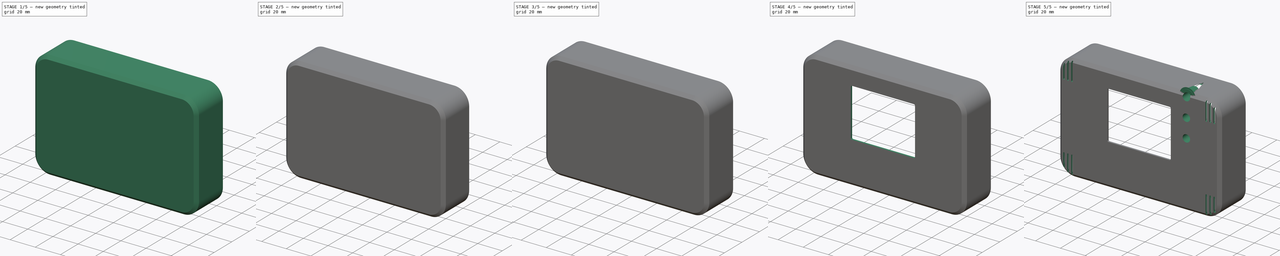
[diagram: build sequence overview — one tinted view per stage of 5, left to right]
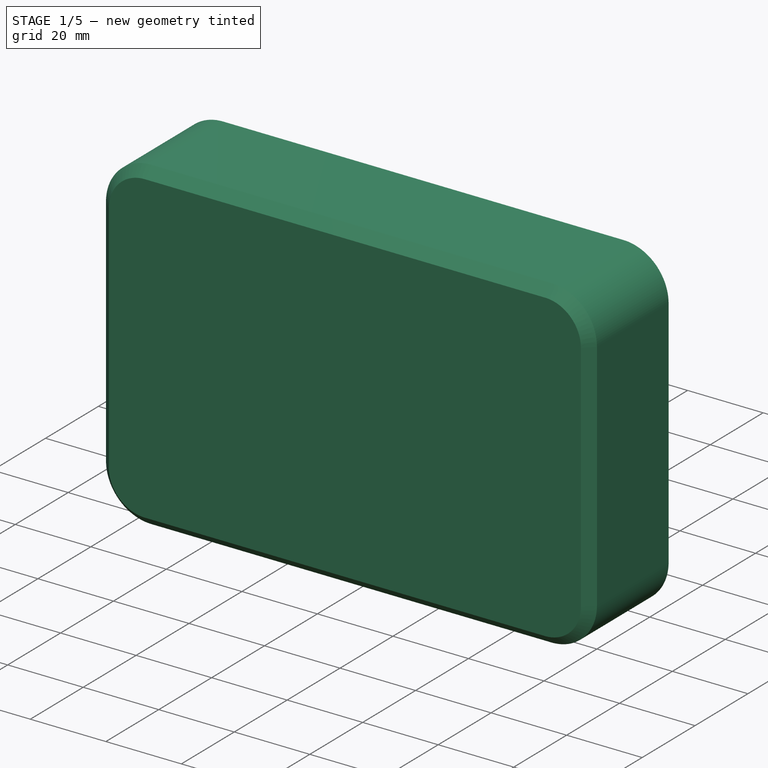
[diagram: stage 1 of 5 — iso view after this stage's code; geometry added in this stage tinted green]
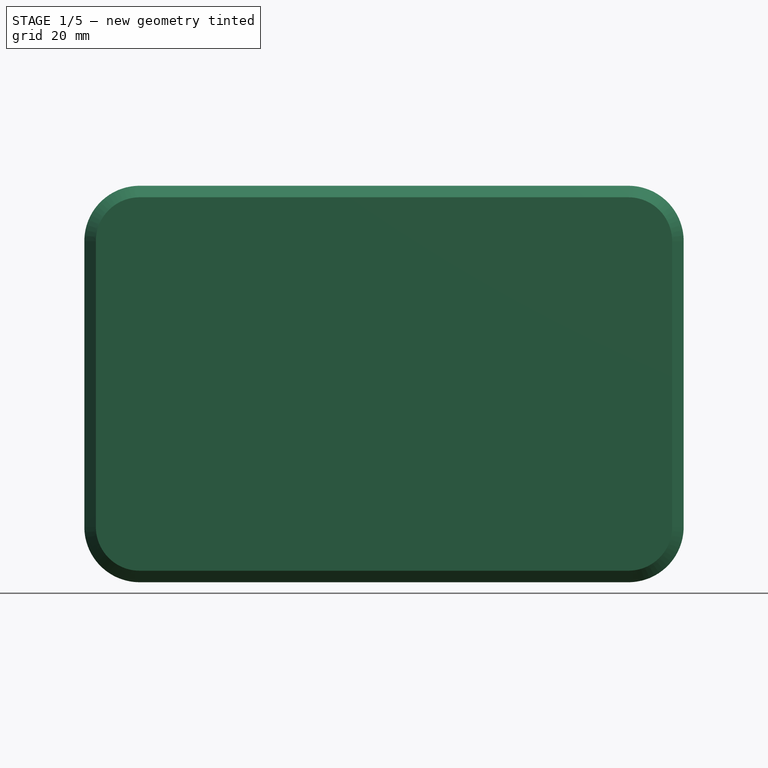
[diagram: stage 1 of 5 — front view after this stage's code; geometry added in this stage tinted green]
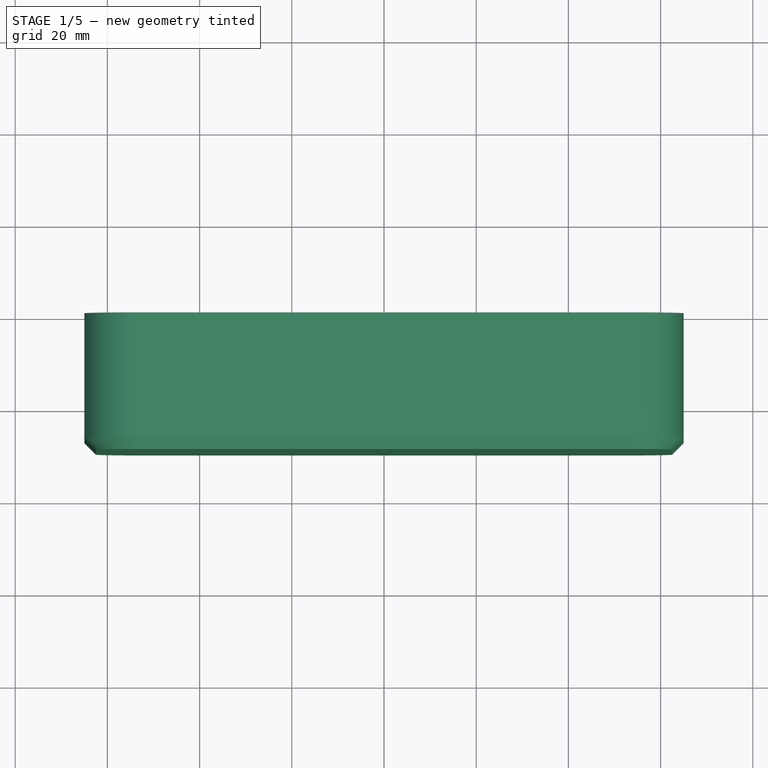
[diagram: stage 1 of 5 — top view after this stage's code; geometry added in this stage tinted green]
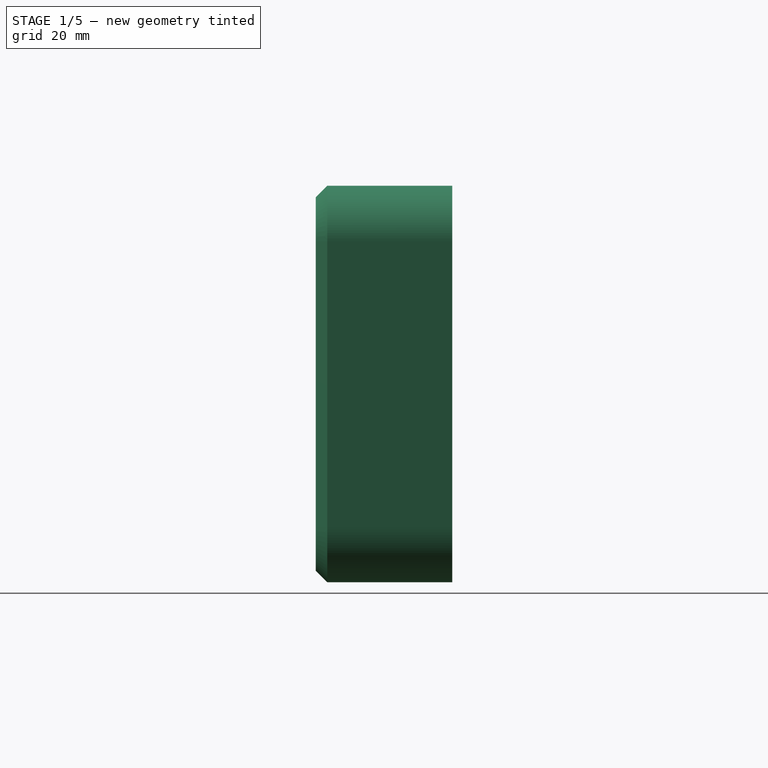
[diagram: stage 1 of 5 — right view after this stage's code; geometry added in this stage tinted green]
FCSTD DOCUMENT  (FreeCAD 0.20R29410 (Git))
Label: TestHousing
License: All rights reserved
LicenseURL: http://en.wikipedia.org/wiki/All_rights_reserved
objects: Sketcher::SketchObject×60, PartDesign::Body×28, PartDesign::Pad×19, PartDesign::AdditivePipe×14, PartDesign::Mirrored×10, PartDesign::Pocket×9, Part::Compound×9, Part::FeaturePython×6, Part::Feature×5, PartDesign::LinearPattern×4, App::Part×4, PartDesign::MultiTransform×4, App::LinkGroup×4, PartDesign::SubShapeBinder×3, PartDesign::Fillet×2, PartDesign::Chamfer×1, PartDesign::Revolution×1, PartDesign::Groove×1
note: 223 computed .brp shape members not serialized (recipe doc carries the construction recipe); baked Part::Feature solids carry a one-line shape summary decoded from their .brp

FEATURE [Sketcher::SketchObject] Sketch114  label="pin crs018"
  AttachmentOffset = pos=(0,0,-1) rot=(0,0,1;0rad)
  FullyConstrained = true
  MapMode = 5
  Placement = pos=(0,0,-1) rot=(0,0,1;0rad)
  sketch-geometry (4):
    g0: LineSegment StartX=-0.275 StartY=0.275 StartZ=0 EndX=0.275 EndY=0.275 EndZ=0
    g1: LineSegment StartX=0.275 StartY=0.275 StartZ=0 EndX=0.275 EndY=-0.275 EndZ=0
    g2: LineSegment StartX=0.275 StartY=-0.275 StartZ=0 EndX=-0.275 EndY=-0.275 EndZ=0
    g3: LineSegment StartX=-0.275 StartY=-0.275 StartZ=0 EndX=-0.275 EndY=0.275 EndZ=0
  constraints (10):
    c: Coincident(g0,g1)
    c: Coincident(g1,g2)
    c: Coincident(g2,g3)
    c: Coincident(g3,g0)
    c: Horizontal(g2)
    c: Vertical(g3)
    c: Symmetric(g1,g0,g-1)
    c: Symmetric(g0,g0,g-2)
    c: Equal(g0,g1)
    c: DistanceX(g0,g0) = 0.55
FEATURE [Sketcher::SketchObject] Sketch115  label="pin trj018"
  FullyConstrained = true
  MapMode = 5
  Placement = pos=(0,0,0) rot=(1,0,0;1.5708rad)
  Support = -> [XZ_Plane056]
  sketch-geometry (3):
    g0: LineSegment StartX=0.5 StartY=0 StartZ=0 EndX=10 EndY=0 EndZ=0
    g1: LineSegment StartX=0 StartY=-2.5 StartZ=0 EndX=0 EndY=-0.5 EndZ=0
    g2: ArcOfCircle CenterX=0.5 CenterY=-0.5 CenterZ=0 NormalX=0 NormalY=0 NormalZ=1 AngleXU=0 Radius=0.5 StartAngle=1.5708 EndAngle=3.14159
  constraints (9):
    c: Horizontal(g0)
    c: Vertical(g1)
    c: Tangent(g0,g2) = 1.5708
    c: Tangent(g1,g2) = 1.5708
    c: DistanceY(g1,g-1) = 2.5
    c: DistanceX(g-1,g0) = 10
    c: Radius(g2) = 0.5
    c: PointOnObject(g1,g-2)
    c: PointOnObject(g0,g-1)
FEATURE [Sketcher::SketchObject] Sketch116  label="pin trj019"
  FullyConstrained = true
  MapMode = 5
  Placement = pos=(0,0,0) rot=(1,0,0;1.5708rad)
  Support = -> [XZ_Plane059]
  sketch-geometry (3):
    g0: LineSegment StartX=0.5 StartY=0 StartZ=0 EndX=10 EndY=0 EndZ=0
    g1: LineSegment StartX=0 StartY=-2.5 StartZ=0 EndX=0 EndY=-0.5 EndZ=0
    g2: ArcOfCircle CenterX=0.5 CenterY=-0.5 CenterZ=0 NormalX=0 NormalY=0 NormalZ=1 AngleXU=0 Radius=0.5 StartAngle=1.5708 EndAngle=3.14159
  constraints (9):
    c: Horizontal(g0)
    c: Vertical(g1)
    c: Tangent(g0,g2) = 1.5708
    c: Tangent(g1,g2) = 1.5708
    c: DistanceY(g1,g-1) = 2.5
    c: DistanceX(g-1,g0) = 10
    c: Radius(g2) = 0.5
    c: PointOnObject(g1,g-2)
    c: PointOnObject(g0,g-1)
FEATURE [Sketcher::SketchObject] Sketch117
  AttachmentOffset = pos=(0,0,10) rot=(0,0,1;0rad)
  FullyConstrained = true
  MapMode = 5
  Placement = pos=(10,-2.2e-15,2.2e-15) rot=(0.57735,0.57735,0.57735;2.0944rad)
  Support = -> [YZ_Plane052]
  sketch-geometry (2):
    g0: ArcOfCircle CenterX=0 CenterY=0 CenterZ=0 NormalX=0 NormalY=0 NormalZ=1 AngleXU=0 Radius=2.3 StartAngle=5.68249 EndAngle=10.0255
    g1: LineSegment StartX=1.89737 StartY=-1.3 StartZ=0 EndX=-1.89737 EndY=-1.3 EndZ=0
  constraints (6):
    c: Coincident(g1,g0)
    c: Coincident(g1,g0)
    c: Coincident(g0,g-1)
    c: Diameter(g0) = 4.6
    c: Distance(g0,g1) = 1.3
    c: Horizontal(g1)
FEATURE [PartDesign::Pad] Pad028
  Direction = (1,1,1)
  Length = 4.7
  Length2 = 100
  Placement = pos=(0,0,0) rot=(0.57735,0.57735,0.57735;2.0944rad)
  Profile = -> Sketch117
  Type = 0
FEATURE [PartDesign::Body] Body050  label="DallasSensor006"
  Group = -> [Sketch117,Pad028]
  Origin = -> Origin058
  Tip = -> Pad028
FEATURE [Sketcher::SketchObject] Sketch118  label="pin trj020"
  FullyConstrained = true
  MapMode = 5
  Placement = pos=(0,0,0) rot=(1,0,0;1.5708rad)
  Support = -> [XZ_Plane053]
  sketch-geometry (3):
    g0: LineSegment StartX=0.5 StartY=0 StartZ=0 EndX=10 EndY=0 EndZ=0
    g1: LineSegment StartX=0 StartY=-2.5 StartZ=0 EndX=0 EndY=-0.5 EndZ=0
    g2: ArcOfCircle CenterX=0.5 CenterY=-0.5 CenterZ=0 NormalX=0 NormalY=0 NormalZ=1 AngleXU=0 Radius=0.5 StartAngle=1.5708 EndAngle=3.14159
  constraints (9):
    c: Horizontal(g0)
    c: Vertical(g1)
    c: Tangent(g0,g2) = 1.5708
    c: Tangent(g1,g2) = 1.5708
    c: DistanceY(g1,g-1) = 2.5
    c: DistanceX(g-1,g0) = 10
    c: Radius(g2) = 0.5
    c: PointOnObject(g1,g-2)
    c: PointOnObject(g0,g-1)
FEATURE [Sketcher::SketchObject] Sketch119  label="pin crs019"
  AttachmentOffset = pos=(0,0,-1) rot=(0,0,1;0rad)
  FullyConstrained = true
  MapMode = 5
  Placement = pos=(0,0,-1) rot=(0,0,1;0rad)
  sketch-geometry (4):
    g0: LineSegment StartX=-0.275 StartY=0.275 StartZ=0 EndX=0.275 EndY=0.275 EndZ=0
    g1: LineSegment StartX=0.275 StartY=0.275 StartZ=0 EndX=0.275 EndY=-0.275 EndZ=0
    g2: LineSegment StartX=0.275 StartY=-0.275 StartZ=0 EndX=-0.275 EndY=-0.275 EndZ=0
    g3: LineSegment StartX=-0.275 StartY=-0.275 StartZ=0 EndX=-0.275 EndY=0.275 EndZ=0
  constraints (10):
    c: Coincident(g0,g1)
    c: Coincident(g1,g2)
    c: Coincident(g2,g3)
    c: Coincident(g3,g0)
    c: Horizontal(g2)
    c: Vertical(g3)
    c: Symmetric(g1,g0,g-1)
    c: Symmetric(g0,g0,g-2)
    c: Equal(g0,g1)
    c: DistanceX(g0,g0) = 0.55
FEATURE [Sketcher::SketchObject] Sketch120  label="pin crs020"
  AttachmentOffset = pos=(0,0,-1) rot=(0,0,1;0rad)
  FullyConstrained = true
  MapMode = 5
  Placement = pos=(0,0,-1) rot=(0,0,1;0rad)
  sketch-geometry (4):
    g0: LineSegment StartX=-0.275 StartY=0.275 StartZ=0 EndX=0.275 EndY=0.275 EndZ=0
    g1: LineSegment StartX=0.275 StartY=0.275 StartZ=0 EndX=0.275 EndY=-0.275 EndZ=0
    g2: LineSegment StartX=0.275 StartY=-0.275 StartZ=0 EndX=-0.275 EndY=-0.275 EndZ=0
    g3: LineSegment StartX=-0.275 StartY=-0.275 StartZ=0 EndX=-0.275 EndY=0.275 EndZ=0
  constraints (10):
    c: Coincident(g0,g1)
    c: Coincident(g1,g2)
    c: Coincident(g2,g3)
    c: Coincident(g3,g0)
    c: Horizontal(g2)
    c: Vertical(g3)
    c: Symmetric(g1,g0,g-1)
    c: Symmetric(g0,g0,g-2)
    c: Equal(g0,g1)
    c: DistanceX(g0,g0) = 0.55
FEATURE [PartDesign::AdditivePipe] AdditivePipe021
  AuxilleryCurvelinear = true
  AuxillerySpineTangent = false
  Binormal = (0,0,0)
  Mode = 0
  Placement = pos=(0,0,-1) rot=(0,0,1;0rad)
  Profile = -> Sketch120
  Spine = -> Sketch118
  SpineTangent = false
  Transformation = 0
  Transition = 0
FEATURE [PartDesign::Body] Body049  label="DallasPin020"
  Group = -> [Sketch118,Sketch120,AdditivePipe021]
  Origin = -> Origin056
  Placement = pos=(0,0,0) rot=(1,0,0;3.14159rad)
  Tip = -> AdditivePipe021
FEATURE [Sketcher::SketchObject] Sketch121  label="pin crs021"
  AttachmentOffset = pos=(0,0,-1) rot=(0,0,1;0rad)
  FullyConstrained = true
  MapMode = 5
  Placement = pos=(0,0,-1) rot=(0,0,1;0rad)
  sketch-geometry (4):
    g0: LineSegment StartX=-0.275 StartY=0.275 StartZ=0 EndX=0.275 EndY=0.275 EndZ=0
    g1: LineSegment StartX=0.275 StartY=0.275 StartZ=0 EndX=0.275 EndY=-0.275 EndZ=0
    g2: LineSegment StartX=0.275 StartY=-0.275 StartZ=0 EndX=-0.275 EndY=-0.275 EndZ=0
    g3: LineSegment StartX=-0.275 StartY=-0.275 StartZ=0 EndX=-0.275 EndY=0.275 EndZ=0
  constraints (10):
    c: Coincident(g0,g1)
    c: Coincident(g1,g2)
    c: Coincident(g2,g3)
    c: Coincident(g3,g0)
    c: Horizontal(g2)
    c: Vertical(g3)
    c: Symmetric(g1,g0,g-1)
    c: Symmetric(g0,g0,g-2)
    c: Equal(g0,g1)
    c: DistanceX(g0,g0) = 0.55
FEATURE [Sketcher::SketchObject] Sketch122  label="pin trj021"
  FullyConstrained = true
  MapMode = 5
  Placement = pos=(0,0,0) rot=(1,0,0;1.5708rad)
  Support = -> [XZ_Plane054]
  sketch-geometry (3):
    g0: LineSegment StartX=0.5 StartY=0 StartZ=0 EndX=10 EndY=0 EndZ=0
    g1: LineSegment StartX=0 StartY=-2.5 StartZ=0 EndX=0 EndY=-0.5 EndZ=0
    g2: ArcOfCircle CenterX=0.5 CenterY=-0.5 CenterZ=0 NormalX=0 NormalY=0 NormalZ=1 AngleXU=0 Radius=0.5 StartAngle=1.5708 EndAngle=3.14159
  constraints (9):
    c: Horizontal(g0)
    c: Vertical(g1)
    c: Tangent(g0,g2) = 1.5708
    c: Tangent(g1,g2) = 1.5708
    c: DistanceY(g1,g-1) = 2.5
    c: DistanceX(g-1,g0) = 10
    c: Radius(g2) = 0.5
    c: PointOnObject(g1,g-2)
    c: PointOnObject(g0,g-1)
FEATURE [PartDesign::AdditivePipe] AdditivePipe020
  AuxilleryCurvelinear = true
  AuxillerySpineTangent = false
  Binormal = (0,0,0)
  Mode = 0
  Placement = pos=(0,0,-1) rot=(0,0,1;0rad)
  Profile = -> Sketch119
  Spine = -> Sketch122
  SpineTangent = false
  Transformation = 0
  Transition = 0
FEATURE [PartDesign::Body] Body048  label="DallasPin019"
  Group = -> [Sketch122,Sketch119,AdditivePipe020]
  Origin = -> Origin059
  Placement = pos=(0,1.27,0) rot=(1,0,0;3.14159rad)
  Tip = -> AdditivePipe020
FEATURE [Sketcher::SketchObject] Sketch123  label="pin trj022"
  FullyConstrained = true
  MapMode = 5
  Placement = pos=(0,0,0) rot=(1,0,0;1.5708rad)
  Support = -> [XZ_Plane055]
  sketch-geometry (3):
    g0: LineSegment StartX=0.5 StartY=0 StartZ=0 EndX=10 EndY=0 EndZ=0
    g1: LineSegment StartX=0 StartY=-2.5 StartZ=0 EndX=0 EndY=-0.5 EndZ=0
    g2: ArcOfCircle CenterX=0.5 CenterY=-0.5 CenterZ=0 NormalX=0 NormalY=0 NormalZ=1 AngleXU=0 Radius=0.5 StartAngle=1.5708 EndAngle=3.14159
  constraints (9):
    c: Horizontal(g0)
    c: Vertical(g1)
    c: Tangent(g0,g2) = 1.5708
    c: Tangent(g1,g2) = 1.5708
    c: DistanceY(g1,g-1) = 2.5
    c: DistanceX(g-1,g0) = 10
    c: Radius(g2) = 0.5
    c: PointOnObject(g1,g-2)
    c: PointOnObject(g0,g-1)
FEATURE [PartDesign::AdditivePipe] AdditivePipe022
  AuxilleryCurvelinear = true
  AuxillerySpineTangent = false
  Binormal = (0,0,0)
  Mode = 0
  Placement = pos=(0,0,-1) rot=(0,0,1;0rad)
  Profile = -> Sketch121
  Spine = -> Sketch123
  SpineTangent = false
  Transformation = 0
  Transition = 0
FEATURE [PartDesign::Body] Body047  label="DallasPin018"
  Group = -> [Sketch123,Sketch121,AdditivePipe022]
  Origin = -> Origin057
  Placement = pos=(0,-1.27,0) rot=(1,0,0;3.14159rad)
  Tip = -> AdditivePipe022
FEATURE [App::LinkGroup] LinkGroup002
  ElementList = -> [Body050,Body049,Body048,Body047]
  LinkMode = 0
FEATURE [Sketcher::SketchObject] Sketch124  label="pin crs022"
  AttachmentOffset = pos=(0,0,-1) rot=(0,0,1;0rad)
  FullyConstrained = true
  MapMode = 5
  Placement = pos=(0,0,-1) rot=(0,0,1;0rad)
  sketch-geometry (4):
    g0: LineSegment StartX=-0.275 StartY=0.275 StartZ=0 EndX=0.275 EndY=0.275 EndZ=0
    g1: LineSegment StartX=0.275 StartY=0.275 StartZ=0 EndX=0.275 EndY=-0.275 EndZ=0
    g2: LineSegment StartX=0.275 StartY=-0.275 StartZ=0 EndX=-0.275 EndY=-0.275 EndZ=0
    g3: LineSegment StartX=-0.275 StartY=-0.275 StartZ=0 EndX=-0.275 EndY=0.275 EndZ=0
  constraints (10):
    c: Coincident(g0,g1)
    c: Coincident(g1,g2)
    c: Coincident(g2,g3)
    c: Coincident(g3,g0)
    c: Horizontal(g2)
    c: Vertical(g3)
    c: Symmetric(g1,g0,g-1)
    c: Symmetric(g0,g0,g-2)
    c: Equal(g0,g1)
    c: DistanceX(g0,g0) = 0.55
FEATURE [Sketcher::SketchObject] Sketch125
  AttachmentOffset = pos=(0,0,10) rot=(0,0,1;0rad)
  FullyConstrained = true
  MapMode = 5
  Placement = pos=(10,-2.2e-15,2.2e-15) rot=(0.57735,0.57735,0.57735;2.0944rad)
  Support = -> [YZ_Plane056]
  sketch-geometry (2):
    g0: ArcOfCircle CenterX=0 CenterY=0 CenterZ=0 NormalX=0 NormalY=0 NormalZ=1 AngleXU=0 Radius=2.3 StartAngle=5.68249 EndAngle=10.0255
    g1: LineSegment StartX=1.89737 StartY=-1.3 StartZ=0 EndX=-1.89737 EndY=-1.3 EndZ=0
  constraints (6):
    c: Coincident(g1,g0)
    c: Coincident(g1,g0)
    c: Coincident(g0,g-1)
    c: Diameter(g0) = 4.6
    c: Distance(g0,g1) = 1.3
    c: Horizontal(g1)
FEATURE [Sketcher::SketchObject] Sketch126  label="pin crs023"
  AttachmentOffset = pos=(0,0,-1) rot=(0,0,1;0rad)
  FullyConstrained = true
  MapMode = 5
  Placement = pos=(0,0,-1) rot=(0,0,1;0rad)
  sketch-geometry (4):
    g0: LineSegment StartX=-0.275 StartY=0.275 StartZ=0 EndX=0.275 EndY=0.275 EndZ=0
    g1: LineSegment StartX=0.275 StartY=0.275 StartZ=0 EndX=0.275 EndY=-0.275 EndZ=0
    g2: LineSegment StartX=0.275 StartY=-0.275 StartZ=0 EndX=-0.275 EndY=-0.275 EndZ=0
    g3: LineSegment StartX=-0.275 StartY=-0.275 StartZ=0 EndX=-0.275 EndY=0.275 EndZ=0
  constraints (10):
    c: Coincident(g0,g1)
    c: Coincident(g1,g2)
    c: Coincident(g2,g3)
    c: Coincident(g3,g0)
    c: Horizontal(g2)
    c: Vertical(g3)
    c: Symmetric(g1,g0,g-1)
    c: Symmetric(g0,g0,g-2)
    c: Equal(g0,g1)
    c: DistanceX(g0,g0) = 0.55
FEATURE [Sketcher::SketchObject] Sketch127  label="pin trj023"
  FullyConstrained = true
  MapMode = 5
  Placement = pos=(0,0,0) rot=(1,0,0;1.5708rad)
  Support = -> [XZ_Plane058]
  sketch-geometry (3):
    g0: LineSegment StartX=0.5 StartY=0 StartZ=0 EndX=10 EndY=0 EndZ=0
    g1: LineSegment StartX=0 StartY=-2.5 StartZ=0 EndX=0 EndY=-0.5 EndZ=0
    g2: ArcOfCircle CenterX=0.5 CenterY=-0.5 CenterZ=0 NormalX=0 NormalY=0 NormalZ=1 AngleXU=0 Radius=0.5 StartAngle=1.5708 EndAngle=3.14159
  constraints (9):
    c: Horizontal(g0)
    c: Vertical(g1)
    c: Tangent(g0,g2) = 1.5708
    c: Tangent(g1,g2) = 1.5708
    c: DistanceY(g1,g-1) = 2.5
    c: DistanceX(g-1,g0) = 10
    c: Radius(g2) = 0.5
    c: PointOnObject(g1,g-2)
    c: PointOnObject(g0,g-1)
FEATURE [PartDesign::Pad] Pad029
  Direction = (1,1,1)
  Length = 4.7
  Length2 = 100
  Placement = pos=(0,0,0) rot=(0.57735,0.57735,0.57735;2.0944rad)
  Profile = -> Sketch125
  Type = 0
FEATURE [PartDesign::AdditivePipe] AdditivePipe023
  AuxilleryCurvelinear = true
  AuxillerySpineTangent = false
  Binormal = (0,0,0)
  Mode = 0
  Placement = pos=(0,0,-1) rot=(0,0,1;0rad)
  Profile = -> Sketch126
  Spine = -> Sketch115
  SpineTangent = false
  Transformation = 0
  Transition = 0
FEATURE [PartDesign::AdditivePipe] AdditivePipe024
  AuxilleryCurvelinear = true
  AuxillerySpineTangent = false
  Binormal = (0,0,0)
  Mode = 0
  Placement = pos=(0,0,-1) rot=(0,0,1;0rad)
  Profile = -> Sketch114
  Spine = -> Sketch116
  SpineTangent = false
  Transformation = 0
  Transition = 0
FEATURE [PartDesign::AdditivePipe] AdditivePipe025
  AuxilleryCurvelinear = true
  AuxillerySpineTangent = false
  Binormal = (0,0,0)
  Mode = 0
  Placement = pos=(0,0,-1) rot=(0,0,1;0rad)
  Profile = -> Sketch124
  Spine = -> Sketch127
  SpineTangent = false
  Transformation = 0
  Transition = 0
FEATURE [PartDesign::Body] Body051  label="DallasPin021"
  Group = -> [Sketch127,Sketch124,AdditivePipe025]
  Origin = -> Origin054
  Placement = pos=(0,0,0) rot=(1,0,0;3.14159rad)
  Tip = -> AdditivePipe025
FEATURE [PartDesign::Body] Body052  label="DallasPin022"
  Group = -> [Sketch115,Sketch126,AdditivePipe023]
  Origin = -> Origin052
  Placement = pos=(0,1.27,0) rot=(1,0,0;3.14159rad)
  Tip = -> AdditivePipe023
FEATURE [PartDesign::Body] Body053  label="DallasSensor007"
  Group = -> [Sketch125,Pad029]
  Origin = -> Origin055
  Tip = -> Pad029
FEATURE [PartDesign::Body] Body054  label="DallasPin023"
  Group = -> [Sketch116,Sketch114,AdditivePipe024]
  Origin = -> Origin053
  Placement = pos=(0,-1.27,0) rot=(1,0,0;3.14159rad)
  Tip = -> AdditivePipe024
FEATURE [App::LinkGroup] LinkGroup003
  ElementList = -> [Body053,Body051,Body052,Body054]
  LinkMode = 0
FEATURE [Part::Compound] Compound009  label="Dallas DS18B20_3"
  Links = -> [LinkGroup003]
  Placement = pos=(45,-16,-34.01) rot=(1,0,0;1.5708rad)
FEATURE [Part::Compound] Compound010  label="Dallas DS18B20_4"
  Links = -> [LinkGroup002]
  Placement = pos=(45,-16,31.99) rot=(1,0,0;1.5708rad)
FEATURE [PartDesign::Pad] Pad030  label="TH Housing base"
  Direction = (0,-1,-2e-16)
  Length = 29.6
  Length2 = 10
  Placement = pos=(0,0,0) rot=(1,0,0;1.5708rad)
  Profile = -> Sketch128
  ReferenceAxis = -> Sketch128 [N_Axis]
  Type = 0
FEATURE [Sketcher::SketchObject] Sketch129  label="TH housing cavity"
  ExternalGeometry = -> [Sketch128]
  FullyConstrained = true
  MapMode = 5
  Placement = pos=(0,0,0) rot=(1,0,0;1.5708rad)
  Support = -> [XZ_Plane063]
  sketch-geometry (9):
    g0: ArcOfCircle CenterX=53 CenterY=31 CenterZ=0 NormalX=0 NormalY=0 NormalZ=1 AngleXU=0 Radius=10.5 StartAngle=3e-16 EndAngle=1.5708
    g1: LineSegment StartX=63.5 StartY=31 StartZ=0 EndX=63.5 EndY=-31 EndZ=0
    g2: ArcOfCircle CenterX=53 CenterY=-31 CenterZ=0 NormalX=0 NormalY=0 NormalZ=1 AngleXU=0 Radius=10.5 StartAngle=4.71239 EndAngle=6.28319
    g3: LineSegment StartX=53 StartY=-41.5 StartZ=0 EndX=-53 EndY=-41.5 EndZ=0
    g4: ArcOfCircle CenterX=-53 CenterY=-31 CenterZ=0 NormalX=0 NormalY=0 NormalZ=1 AngleXU=0 Radius=10.5 StartAngle=3.14159 EndAngle=4.71239
    g5: LineSegment StartX=-63.5 StartY=-31 StartZ=0 EndX=-63.5 EndY=31 EndZ=0
    g6: ArcOfCircle CenterX=-53 CenterY=31 CenterZ=0 NormalX=0 NormalY=0 NormalZ=1 AngleXU=0 Radius=10.5 StartAngle=1.5708 EndAngle=3.14159
    g7: LineSegment StartX=-53 StartY=41.5 StartZ=0 EndX=53 EndY=41.5 EndZ=0
    g8: GeomPoint X=-63.5 Y=-41.5 Z=0
  constraints (20):
    c: Tangent(g0,g1) = 1.5708
    c: Tangent(g1,g2) = 1.5708
    c: Tangent(g2,g3) = 1.5708
    c: Tangent(g3,g4) = 1.5708
    c: Tangent(g4,g5) = 1.5708
    c: Tangent(g5,g6) = 1.5708
    c: Tangent(g6,g7) = 1.5708
    c: Tangent(g7,g0) = 1.5708
    c: Horizontal(g3)
    c: Horizontal(g7)
    c: Vertical(g1)
    c: Vertical(g5)
    c: Equal(g0,g2)
    c: Equal(g2,g4)
    c: Equal(g4,g6)
    c: PointOnObject(g8,g3)
    c: PointOnObject(g8,g5)
    c: Coincident(g-3,g4)
    c: Coincident(g0,g-4)
    c: Distance(g-4,g1) = 1.5
FEATURE [PartDesign::Pocket] Pocket008  label="TH Housing cavity"
  BaseFeature = -> Pad030
  Direction = (0,1,2e-16)
  Length = 28.2
  Length2 = 5
  Placement = pos=(0,0,0) rot=(1,0,0;1.5708rad)
  Profile = -> Sketch129
  ReferenceAxis = -> Sketch129 [N_Axis]
  Reversed = true
  Type = 0
FEATURE [PartDesign::SubShapeBinder] Binder  label="th ref Display"
  BindCopyOnChange = 0
  BindMode = 0
  ClaimChildren = false
  Context = -> Body055 [Binder.]
  Fuse = false
  MakeFace = true
  OffsetFill = false
  OffsetIntersection = false
  OffsetJoinType = 0
  OffsetOpenResult = false
  PartialLoad = false
  Relative = true
  Support = -> [Compound011[Edge6,Edge9,Edge21,Edge24,Edge3,Edge11,Edge23,Edge19]]
  _Version = 2
FEATURE [Sketcher::SketchObject] Sketch130  label="th screen cavity"
  ExternalGeometry = -> [Binder]
  FullyConstrained = true
  MapMode = 5
  Placement = pos=(0,0,0) rot=(1,0,0;1.5708rad)
  Support = -> [XZ_Plane063]
  sketch-geometry (10):
    g0: ArcOfCircle CenterX=24.48 CenterY=28.36 CenterZ=0 NormalX=0 NormalY=0 NormalZ=1 AngleXU=0 Radius=1 StartAngle=2.2858e-12 EndAngle=1.5708
    g1: LineSegment StartX=25.48 StartY=28.36 StartZ=0 EndX=25.48 EndY=-8.36 EndZ=0
    g2: ArcOfCircle CenterX=24.48 CenterY=-8.36 CenterZ=0 NormalX=0 NormalY=0 NormalZ=1 AngleXU=0 Radius=1 StartAngle=4.71239 EndAngle=6.28319
    g3: LineSegment StartX=24.48 StartY=-9.36 StartZ=0 EndX=-24.48 EndY=-9.36 EndZ=0
    g4: ArcOfCircle CenterX=-24.48 CenterY=-8.36 CenterZ=0 NormalX=0 NormalY=0 NormalZ=1 AngleXU=0 Radius=1 StartAngle=3.14159 EndAngle=4.71239
    g5: LineSegment StartX=-25.48 StartY=-8.36 StartZ=0 EndX=-25.48 EndY=28.36 EndZ=0
    g6: ArcOfCircle CenterX=-24.48 CenterY=28.36 CenterZ=0 NormalX=0 NormalY=0 NormalZ=1 AngleXU=0 Radius=1 StartAngle=1.5708 EndAngle=3.14159
    g7: LineSegment StartX=-24.48 StartY=29.36 StartZ=0 EndX=24.48 EndY=29.36 EndZ=0
    g8: GeomPoint X=25.48 Y=29.36 Z=0
    g9: GeomPoint X=-25.48 Y=-9.36 Z=0
  constraints (22):
    c: Tangent(g0,g1) = 1.5708
    c: Tangent(g1,g2) = 1.5708
    c: Tangent(g2,g3) = 1.5708
    c: Tangent(g3,g4) = 1.5708
    c: Tangent(g4,g5) = 1.5708
    c: Tangent(g5,g6) = 1.5708
    c: Tangent(g6,g7) = 1.5708
    c: Tangent(g7,g0) = 1.5708
    c: Horizontal(g3)
    c: Horizontal(g7)
    c: Vertical(g1)
    c: Vertical(g5)
    c: Equal(g0,g2)
    c: Equal(g2,g4)
    c: Equal(g4,g6)
    c: PointOnObject(g8,g1)
    c: PointOnObject(g8,g7)
    c: PointOnObject(g9,g3)
    c: PointOnObject(g9,g5)
    c: Coincident(g0,g-4)
    c: Coincident(g4,g-3)
    c: Radius(g0) = 1
FEATURE [PartDesign::SubShapeBinder] Binder001  label="th ref screwholes PCB"
  BindCopyOnChange = 0
  BindMode = 0
  ClaimChildren = false
  Context = -> Body055 [Binder001.]
  Fuse = false
  MakeFace = true
  OffsetFill = false
  OffsetIntersection = false
  OffsetJoinType = 0
  OffsetOpenResult = false
  PartialLoad = false
  Relative = true
  Support = -> [InterconnectPCB_1[Part__Feature006.Edge203,Part__Feature006.Edge207,Part__Feature006.Edge150]]
  _Version = 2
FEATURE [Sketcher::SketchObject] Sketch131  label="th screw pillar"
  AttachmentOffset = pos=(0,0,38) rot=(0,0,1;0rad)
  ExternalGeometry = -> [Binder001]
  FullyConstrained = true
  MapMode = 5
  Placement = pos=(38,-8.4e-15,8.4e-15) rot=(0.57735,0.57735,0.57735;2.0944rad)
  Support = -> [YZ_Plane063]
  sketch-geometry (5):
    g0: LineSegment StartX=-19.6 StartY=-5 StartZ=0 EndX=-28.5 EndY=-5 EndZ=0
    g1: LineSegment StartX=-28.5 StartY=-5 StartZ=0 EndX=-28.5 EndY=-10.2 EndZ=0
    g2: LineSegment StartX=-28.5 StartY=-10.2 StartZ=0 EndX=-19.6 EndY=-9.2 EndZ=0
    g3: LineSegment StartX=-19.6 StartY=-9.2 StartZ=0 EndX=-19.6 EndY=-5 EndZ=0
    g4: LineSegment StartX=-19.6 StartY=-5 StartZ=0 EndX=-28.5 EndY=-5 EndZ=0
  constraints (15):
    c: Coincident(g0,g1)
    c: Coincident(g1,g2)
    c: Coincident(g2,g3)
    c: Coincident(g3,g0)
    c: Horizontal(g0)
    c: Vertical(g1)
    c: Vertical(g3)
    c: DistanceX(g0,g-1) = 28.5
    c: PointOnObject(g4,g1)
    c: PointOnObject(g4,g3)
    c: PointOnObject(g4,g-3)
    c: Symmetric(g-3,g-3,g4)
    c: DistanceY(g2,g2) = 1
    c: PointOnObject(g0,g4)
    c: DistanceY(g2,g-3) = 1.5
FEATURE [PartDesign::SubShapeBinder] Binder002  label="th ref end of PCB"
  BindCopyOnChange = 0
  BindMode = 0
  ClaimChildren = false
  Context = -> Body055 [Binder002.]
  Fuse = false
  MakeFace = true
  OffsetFill = false
  OffsetIntersection = false
  OffsetJoinType = 0
  OffsetOpenResult = false
  PartialLoad = false
  Relative = true
  Support = -> [InterconnectPCB_1[Part__Feature006.Edge3]]
  _Version = 2
FEATURE [Sketcher::SketchObject] Sketch132  label="th PCB holder"
  ExternalGeometry = -> [Binder002]
  FullyConstrained = true
  MapMode = 5
  Support = -> [XY_Plane063]
  sketch-geometry (11):
    g0: LineSegment StartX=-47.5 StartY=-17.5 StartZ=0 EndX=-48 EndY=-17.5 EndZ=0
    g1: LineSegment StartX=-48.5 StartY=-18 StartZ=0 EndX=-48.5 EndY=-19.6 EndZ=0
    g2: LineSegment StartX=-48 StartY=-20.1 StartZ=0 EndX=-46 EndY=-20.1 EndZ=0
    g3: LineSegment StartX=-46 StartY=-20.1 StartZ=0 EndX=-46 EndY=-29 EndZ=0
    g4: LineSegment StartX=-46 StartY=-29 StartZ=0 EndX=-60.5 EndY=-29 EndZ=0
    g5: LineSegment StartX=-64 StartY=-25.5 StartZ=0 EndX=-64 EndY=-14.5 EndZ=0
    g6: LineSegment StartX=-64 StartY=-14.5 StartZ=0 EndX=-47.5 EndY=-14.5 EndZ=0
    g7: ArcOfCircle CenterX=-48 CenterY=-18 CenterZ=0 NormalX=0 NormalY=0 NormalZ=1 AngleXU=0 Radius=0.5 StartAngle=1.5708 EndAngle=3.14159
    g8: ArcOfCircle CenterX=-48 CenterY=-19.6 CenterZ=0 NormalX=0 NormalY=0 NormalZ=1 AngleXU=0 Radius=0.5 StartAngle=3.14159 EndAngle=4.71239
    g9: ArcOfCircle CenterX=-47.5 CenterY=-16 CenterZ=0 NormalX=0 NormalY=0 NormalZ=1 AngleXU=0 Radius=1.5 StartAngle=4.71239 EndAngle=7.85398
    g10: ArcOfCircle CenterX=-60.5 CenterY=-25.5 CenterZ=0 NormalX=0 NormalY=0 NormalZ=1 AngleXU=0 Radius=3.5 StartAngle=3.14159 EndAngle=4.71239
  constraints (27):
    c: Vertical(g1)
    c: Coincident(g2,g3)
    c: Vertical(g3)
    c: Coincident(g3,g4)
    c: Horizontal(g4)
    c: Vertical(g5)
    c: Coincident(g5,g6)
    c: Horizontal(g6)
    c: Tangent(g0,g7) = -1.5708
    c: Tangent(g1,g7) = -1.5708
    c: Tangent(g2,g8) = -1.5708
    c: Tangent(g1,g8) = -1.5708
    c: Coincident(g8,g-3)
    c: Coincident(g7,g-3)
    c: Radius(g7) = 0.5
    c: Horizontal(g2)
    c: DistanceX(g8,g2) = 2
    c: Tangent(g0,g9) = 1.5708
    c: Tangent(g6,g9) = 1.5708
    c: Tangent(g9,g3)
    c: DistanceY(g3,g-1) = 29
    c: DistanceX(g5,g-1) = 64
    c: Horizontal(g0)
    c: Radius(g9) = 1.5
    c: Tangent(g4,g10) = 1.5708
    c: Tangent(g5,g10) = 1.5708
    c: Radius(g10) = 3.5
FEATURE [Sketcher::SketchObject] Sketch133  label="th screw hole"
  AttachmentOffset = pos=(0,0,38) rot=(0,0,1;0rad)
  ExternalGeometry = -> [Binder001,Binder]
  FullyConstrained = true
  MapMode = 5
  Placement = pos=(38,-8.4e-15,8.4e-15) rot=(0.57735,0.57735,0.57735;2.0944rad)
  Support = -> [YZ_Plane063]
  sketch-geometry (5):
    g0: LineSegment StartX=-9.6 StartY=-7.4 StartZ=0 EndX=-34 EndY=-7.4 EndZ=0
    g1: LineSegment StartX=-34 StartY=-5 StartZ=0 EndX=-9.6 EndY=-5 EndZ=0
    g2: LineSegment StartX=-9.6 StartY=-5 StartZ=0 EndX=-9.6 EndY=-7.4 EndZ=0
    g3: LineSegment StartX=-34 StartY=-5 StartZ=0 EndX=-34 EndY=-7.4 EndZ=0
    g4: LineSegment StartX=-34 StartY=-5 StartZ=0 EndX=-31.6 EndY=-5 EndZ=0
  constraints (14):
    c: Coincident(g1,g2)
    c: Coincident(g2,g0)
    c: Horizontal(g0)
    c: Vertical(g2)
    c: Vertical(g3)
    c: Coincident(g1,g3)
    c: Distance(g-3,g0) = 0.3
    c: DistanceX(g-3,g0) = 10
    c: Symmetric(g-3,g-3,g1)
    c: Coincident(g4,g1)
    c: Horizontal(g4)
    c: Equal(g4,g3)
    c: Coincident(g0,g3)
    c: DistanceX(g1,g-1) = 34
FEATURE [Sketcher::SketchObject] Sketch134  label="th vent hole"
  ExternalGeometry = -> [Sketch129]
  FullyConstrained = true
  MapMode = 5
  Placement = pos=(0,0,0) rot=(1,0,0;1.5708rad)
  Support = -> [XZ_Plane063]
  sketch-geometry (12):
    g0: ArcOfCircle CenterX=60.4 CenterY=37.5765 CenterZ=0 NormalX=0 NormalY=0 NormalZ=1 AngleXU=0 Radius=0.6 StartAngle=-1.8e-15 EndAngle=3.14159
    g1: ArcOfCircle CenterX=60.4 CenterY=27 CenterZ=0 NormalX=0 NormalY=0 NormalZ=1 AngleXU=0 Radius=0.6 StartAngle=3.14159 EndAngle=6.28319
    g2: LineSegment StartX=59.8 StartY=37.5765 StartZ=0 EndX=59.8 EndY=27 EndZ=0
    g3: LineSegment StartX=61 StartY=27 StartZ=0 EndX=61 EndY=37.5765 EndZ=0
    g4: ArcOfCircle CenterX=57.2 CenterY=39.9649 CenterZ=0 NormalX=0 NormalY=0 NormalZ=1 AngleXU=0 Radius=0.6 StartAngle=2.9e-15 EndAngle=3.14159
    g5: ArcOfCircle CenterX=57.2 CenterY=27 CenterZ=0 NormalX=0 NormalY=0 NormalZ=1 AngleXU=0 Radius=0.6 StartAngle=3.14159 EndAngle=6.28319
    g6: LineSegment StartX=56.6 StartY=39.9649 StartZ=0 EndX=56.6 EndY=27 EndZ=0
    g7: LineSegment StartX=57.8 StartY=27 StartZ=0 EndX=57.8 EndY=39.9649 EndZ=0
    g8: ArcOfCircle CenterX=54 CenterY=40.8494 CenterZ=0 NormalX=0 NormalY=0 NormalZ=1 AngleXU=0 Radius=0.6 StartAngle=-5.3e-15 EndAngle=3.14159
    g9: ArcOfCircle CenterX=54 CenterY=27 CenterZ=0 NormalX=0 NormalY=0 NormalZ=1 AngleXU=0 Radius=0.6 StartAngle=3.14159 EndAngle=6.28319
    g10: LineSegment StartX=53.4 StartY=40.8494 StartZ=0 EndX=53.4 EndY=27 EndZ=0
    g11: LineSegment StartX=54.6 StartY=27 StartZ=0 EndX=54.6 EndY=40.8494 EndZ=0
  constraints (30):
    c: Tangent(g0,g2) = -1.5708
    c: Tangent(g2,g1) = -1.5708
    c: Tangent(g1,g3) = -1.5708
    c: Tangent(g3,g0) = -1.5708
    c: Equal(g0,g1)
    c: Vertical(g2)
    c: Diameter(g0) = 1.2
    c: Tangent(g4,g6) = -1.5708
    c: Tangent(g6,g5) = -1.5708
    c: Tangent(g5,g7) = -1.5708
    c: Tangent(g7,g4) = -1.5708
    c: Equal(g4,g5)
    c: Vertical(g6)
    c: Tangent(g8,g10) = -1.5708
    c: Tangent(g10,g9) = -1.5708
    c: Tangent(g9,g11) = -1.5708
    c: Tangent(g11,g8) = -1.5708
    c: Equal(g8,g9)
    c: Equal(g1,g5)
    c: Equal(g5,g9)
    c: Horizontal(g5,g9)
    c: Horizontal(g9,g1)
    c: Vertical(g11)
    c: DistanceX(g5,g1) = 2
    c: DistanceX(g9,g5) = 2
    c: DistanceX(g1) = 61
    c: DistanceY(g1) = 27
    c: Tangent(g0,g-3)
    c: Tangent(g4,g-3)
    c: Tangent(g8,g-3)
FEATURE [PartDesign::Mirrored] Mirrored
  MirrorPlane = -> YZ_Plane063
  Placement = pos=(0,0,0) rot=(1,0,0;1.5708rad)
FEATURE [PartDesign::Mirrored] Mirrored010
  MirrorPlane = -> XY_Plane063
  Placement = pos=(0,0,0) rot=(1,0,0;1.5708rad)
FEATURE [Sketcher::SketchObject] Sketch135  label="th rib"
  AttachmentOffset = pos=(0,0,45) rot=(0,0,1;0rad)
  FullyConstrained = true
  MapMode = 5
  Placement = pos=(45,-1e-14,1e-14) rot=(0.57735,0.57735,0.57735;2.0944rad)
  Support = -> [YZ_Plane063]
  sketch-geometry (4):
    g0: LineSegment StartX=-20 StartY=-40 StartZ=0 EndX=-29 EndY=-32.4481 EndZ=0
    g1: LineSegment StartX=-29 StartY=-32.4481 StartZ=0 EndX=-29 EndY=-36.5 EndZ=0
    g2: LineSegment StartX=-25.5 StartY=-40 StartZ=0 EndX=-20 EndY=-40 EndZ=0
    g3: ArcOfCircle CenterX=-25.5 CenterY=-36.5 CenterZ=0 NormalX=0 NormalY=0 NormalZ=1 AngleXU=0 Radius=3.5 StartAngle=3.14159 EndAngle=4.71239
  constraints (11):
    c: Coincident(g0,g1)
    c: Vertical(g1)
    c: Coincident(g2,g0)
    c: Horizontal(g2)
    c: Angle(g0,g2) = 0.698132
    c: Tangent(g1,g3) = -1.5708
    c: Tangent(g2,g3) = -1.5708
    c: DistanceX(g0,g-1) = 29
    c: DistanceY(g0,g-1) = 40
    c: Radius(g3) = 3.5
    c: DistanceX(g0,g-1) = 20
FEATURE [PartDesign::Fillet] Fillet  label="TH Inner fillet"
  Base = -> Pocket008 [Edge48]
  BaseFeature = -> Pocket008
  Placement = pos=(0,0,0) rot=(1,0,0;1.5708rad)
  Radius = 2.5
  SupportTransform = false
  UseAllEdges = false
FEATURE [PartDesign::Chamfer] Chamfer  label="TH Outer chamfer"
  Angle = 45
  Base = -> Fillet [Edge52]
  BaseFeature = -> Fillet
  ChamferType = 0
  FlipDirection = false
  Placement = pos=(0,0,0) rot=(1,0,0;1.5708rad)
  Size = 2.5
  Size2 = 1
  SupportTransform = false
  UseAllEdges = false
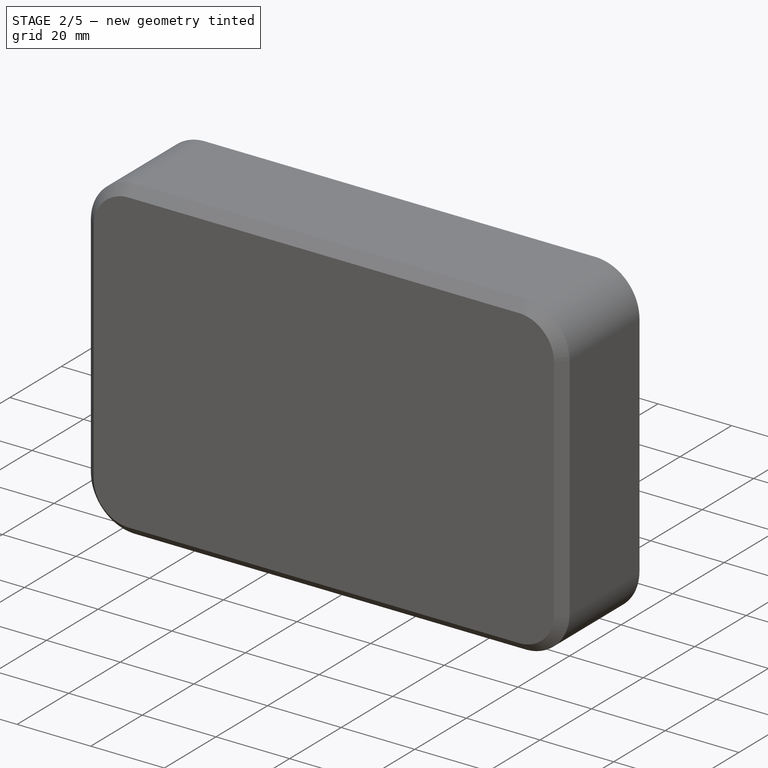
[diagram: stage 2 of 5 — iso view after this stage's code; geometry added in this stage tinted green]
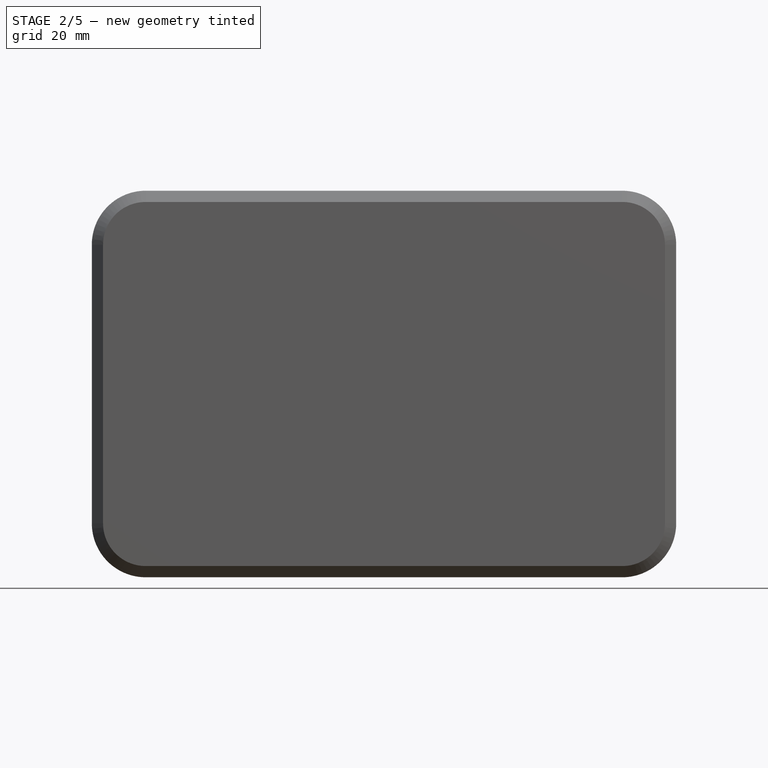
[diagram: stage 2 of 5 — front view after this stage's code; geometry added in this stage tinted green]
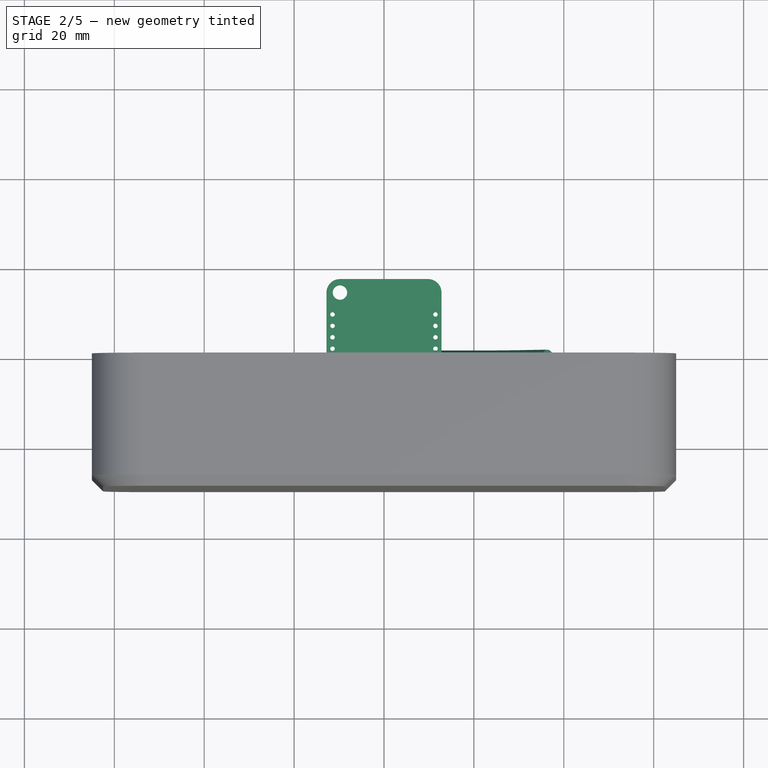
[diagram: stage 2 of 5 — top view after this stage's code; geometry added in this stage tinted green]
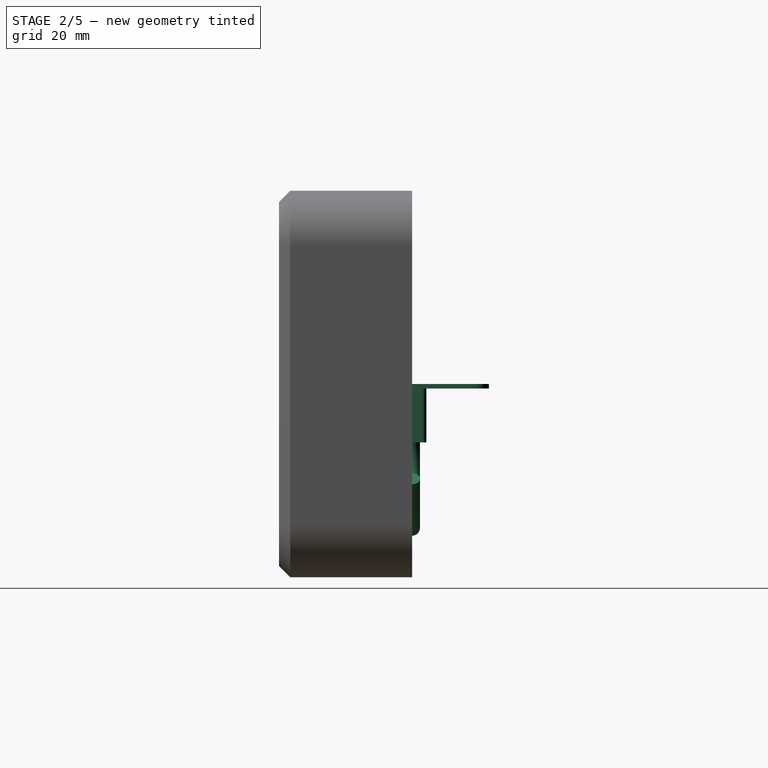
[diagram: stage 2 of 5 — right view after this stage's code; geometry added in this stage tinted green]
FEATURE [Sketcher::SketchObject] Sketch023  label="cable_trj"
  FullyConstrained = true
  MapMode = 5
  Placement = pos=(0,0,0) rot=(1,0,0;1.5708rad)
  Support = -> [XZ_Plane015]
  sketch-geometry (3):
    g0: LineSegment StartX=0 StartY=-13 StartZ=0 EndX=0 EndY=-14 EndZ=0
    g1: ArcOfCircle CenterX=18 CenterY=-14 CenterZ=0 NormalX=0 NormalY=0 NormalZ=1 AngleXU=0 Radius=18 StartAngle=3.14159 EndAngle=5.49779
    g2: LineSegment StartX=30.7279 StartY=-26.7279 StartZ=0 EndX=36.3848 EndY=-21.0711 EndZ=0
  constraints (9):
    c: PointOnObject(g0,g-2)
    c: DistanceY(g0,g-1) = 13
    c: DistanceY(g0,g0) = 1
    c: Tangent(g0,g1) = -1.5708
    c: Radius(g1) = 18
    c: Tangent(g1,g2) = -1.5708
    c: Angle(g2,g-2) = 0.785398
    c: Distance(g2) = 8
    c: Vertical(g0)
FEATURE [Sketcher::SketchObject] Sketch024  label="cable_crs"
  AttachmentOffset = pos=(0,0,-13) rot=(0,0,1;0rad)
  FullyConstrained = true
  MapMode = 5
  Placement = pos=(0,0,-13) rot=(0,0,1;0rad)
  Support = -> [XY_Plane015]
  sketch-geometry (1):
    g0: Circle CenterX=0 CenterY=0 CenterZ=0 NormalX=0 NormalY=0 NormalZ=1 AngleXU=0 Radius=1.75
  constraints (2):
    c: Coincident(g0,g-1)
    c: Diameter(g0) = 3.5
FEATURE [PartDesign::AdditivePipe] AdditivePipe
  AuxilleryCurvelinear = true
  AuxillerySpineTangent = false
  Binormal = (0,0,0)
  Mode = 0
  Profile = -> Sketch024
  Spine = -> Sketch023
  SpineTangent = false
  Transformation = 0
  Transition = 0
FEATURE [PartDesign::Body] Body015  label="Cable"
  Group = -> [Sketch023,Sketch024,AdditivePipe]
  Origin = -> Origin015
  Tip = -> AdditivePipe
FEATURE [Part::Feature] Part__Feature001  label="Micro_USB_Plug_Connector"
  shape: bbox 6.85 x 2.55 x 7.5 mm, 144 faces, 4 solids (baked)
FEATURE [Sketcher::SketchObject] Sketch025  label="Sketch002"
  FullyConstrained = true
  MapMode = 5
  Support = -> [XY_Plane016]
  sketch-geometry (12):
    g0: LineSegment StartX=-3.75 StartY=3.175 StartZ=0 EndX=3.75 EndY=3.175 EndZ=0
    g1: LineSegment StartX=4.65 StartY=2.275 StartZ=0 EndX=4.65 EndY=-2.275 EndZ=0
    g2: LineSegment StartX=3.75 StartY=-3.175 StartZ=0 EndX=-3.75 EndY=-3.175 EndZ=0
    g3: LineSegment StartX=-4.65 StartY=-2.275 StartZ=0 EndX=-4.65 EndY=2.275 EndZ=0
    g4: LineSegment StartX=-3.75 StartY=2.275 StartZ=0 EndX=3.75 EndY=2.275 EndZ=0
    g5: LineSegment StartX=3.75 StartY=2.275 StartZ=0 EndX=3.75 EndY=-2.275 EndZ=0
    g6: LineSegment StartX=3.75 StartY=-2.275 StartZ=0 EndX=-3.75 EndY=-2.275 EndZ=0
    g7: LineSegment StartX=-3.75 StartY=-2.275 StartZ=0 EndX=-3.75 EndY=2.275 EndZ=0
    g8: ArcOfCircle CenterX=3.75 CenterY=2.275 CenterZ=0 NormalX=0 NormalY=0 NormalZ=1 AngleXU=0 Radius=0.9 StartAngle=0 EndAngle=1.5708
    g9: ArcOfCircle CenterX=3.75 CenterY=-2.275 CenterZ=0 NormalX=0 NormalY=0 NormalZ=1 AngleXU=0 Radius=0.9 StartAngle=4.71239 EndAngle=6.28319
    g10: ArcOfCircle CenterX=-3.75 CenterY=-2.275 CenterZ=0 NormalX=0 NormalY=0 NormalZ=1 AngleXU=0 Radius=0.9 StartAngle=3.14159 EndAngle=4.71239
    g11: ArcOfCircle CenterX=-3.75 CenterY=2.275 CenterZ=0 NormalX=0 NormalY=0 NormalZ=1 AngleXU=0 Radius=0.9 StartAngle=1.5708 EndAngle=3.14159
  constraints (26):
    c: Horizontal(g0)
    c: Horizontal(g2)
    c: Vertical(g1)
    c: Vertical(g3)
    c: Coincident(g4,g5)
    c: Coincident(g5,g6)
    c: Coincident(g6,g7)
    c: Coincident(g7,g4)
    c: Horizontal(g6)
    c: Symmetric(g4,g4,g-2)
    c: Symmetric(g4,g5,g-1)
    c: Tangent(g1,g8) = 1.5708
    c: Tangent(g0,g8) = 1.5708
    c: Tangent(g1,g9) = 1.5708
    c: Tangent(g2,g9) = 1.5708
    c: Tangent(g2,g10) = 1.5708
    c: Tangent(g3,g10) = 1.5708
    c: Tangent(g0,g11) = 1.5708
    c: Tangent(g3,g11) = 1.5708
    c: Coincident(g4,g8)
    c: Coincident(g5,g9)
    c: Coincident(g6,g10)
    c: Coincident(g4,g11)
    c: DistanceX(g3,g1) = 9.3
    c: DistanceY(g2,g0) = 6.35
    c: Radius(g8) = 0.9
FEATURE [PartDesign::Pad] Pad015
  Direction = (1,1,1)
  Length = 13
  Length2 = 100
  Profile = -> Sketch025
  Reversed = true
  Type = 0
FEATURE [Sketcher::SketchObject] Sketch032
  FullyConstrained = true
  MapMode = 5
  Support = -> [XY_Plane025]
  sketch-geometry (13):
    g0: LineSegment StartX=9.8 StartY=17.1 StartZ=0 EndX=-9.8 EndY=17.1 EndZ=0
    g1: LineSegment StartX=-12.8 StartY=14.1 StartZ=0 EndX=-12.8 EndY=-17.1 EndZ=0
    g2: LineSegment StartX=-12.8 StartY=-17.1 StartZ=0 EndX=12.8 EndY=-17.1 EndZ=0
    g3: LineSegment StartX=12.8 StartY=-17.1 StartZ=0 EndX=12.8 EndY=14.1 EndZ=0
    g4: GeomPoint X=12.8 Y=17.1 Z=0
    g5: ArcOfCircle CenterX=9.8 CenterY=14.1 CenterZ=0 NormalX=0 NormalY=0 NormalZ=1 AngleXU=0 Radius=3 StartAngle=0 EndAngle=1.5708
    g6: ArcOfCircle CenterX=-9.8 CenterY=14.1 CenterZ=0 NormalX=0 NormalY=0 NormalZ=1 AngleXU=0 Radius=3 StartAngle=1.5708 EndAngle=3.14159
    g7: Circle CenterX=-9.8 CenterY=14.1 CenterZ=0 NormalX=0 NormalY=0 NormalZ=1 AngleXU=0 Radius=1.6
    g8: Circle CenterX=9.8 CenterY=-14.1 CenterZ=0 NormalX=0 NormalY=0 NormalZ=1 AngleXU=0 Radius=1.6
    g9: LineSegment StartX=-9.8 StartY=14.1 StartZ=0 EndX=9.8 EndY=14.1 EndZ=0
    g10: LineSegment StartX=9.8 StartY=14.1 StartZ=0 EndX=9.8 EndY=-14.1 EndZ=0
    g11: LineSegment StartX=9.8 StartY=-14.1 StartZ=0 EndX=-9.8 EndY=-14.1 EndZ=0
    g12: LineSegment StartX=-9.8 StartY=-14.1 StartZ=0 EndX=-9.8 EndY=14.1 EndZ=0
  constraints (29):
    c: Vertical(g1)
    c: Symmetric(g1,g3,g-2)
    c: PointOnObject(g4,g0)
    c: Symmetric(g4,g2,g-1)
    c: Symmetric(g2,g2,g-2)
    c: Tangent(g3,g5) = -1.5708
    c: Tangent(g0,g5) = -1.5708
    c: Tangent(g0,g6) = -1.5708
    c: Tangent(g1,g6) = -1.5708
    c: Symmetric(g5,g6,g-2)
    c: Coincident(g1,g2)
    c: DistanceY(g2,g0) = 34.2
    c: Vertical(g3)
    c: DistanceX(g1,g3) = 25.6
    c: Radius(g5) = 3
    c: Coincident(g7,g6)
    c: Diameter(g7) = 3.2
    c: Coincident(g9,g10)
    c: Coincident(g10,g11)
    c: Coincident(g11,g12)
    c: Coincident(g12,g9)
    c: Horizontal(g11)
    c: Vertical(g12)
    c: Coincident(g9,g6)
    c: Coincident(g10,g8)
    c: Symmetric(g6,g9,g-2)
    c: Symmetric(g5,g8,g-1)
    c: Equal(g8,g7)
    c: DistanceY(g1,g-1) = 17.1
FEATURE [PartDesign::Pad] Pad017
  Direction = (1,1,1)
  Length = 1
  Length2 = 100
  Profile = -> Sketch032
  Reversed = true
  Type = 0
FEATURE [PartDesign::Body] Body008  label="PinsDevice004"
  Group = -> [Sketch037,Pad020,Mirrored007,Sketch013,Pocket006,Mirrored008]
  Origin = -> Origin007
  Placement = pos=(0,29.75,0) rot=(0,0,1;0rad)
  Tip = -> Mirrored008
FEATURE [Sketcher::SketchObject] Sketch038  label="Sketch039"
  FullyConstrained = false
  MapMode = 5
  Support = -> [XY_Plane025]
  sketch-geometry (1):
    g0: Circle CenterX=11.45 CenterY=-11.09 CenterZ=0 NormalX=0 NormalY=0 NormalZ=1 AngleXU=0 Radius=0.5
  constraints (3):
    c: DistanceX(g-1,g0) = 11.45
    c: DistanceY(g0,g-1) = 11.09
    c: Diameter(g0) = 1
FEATURE [PartDesign::Pocket] Pocket007
  BaseFeature = -> Pad017
  Direction = (1,1,1)
  Length = 5
  Length2 = 100
  Midplane = true
  Profile = -> Sketch038
  Type = 1
FEATURE [PartDesign::LinearPattern] LinearPattern002
  Direction = -> Y_Axis025
  Length = 20.32
  Occurrences = 9
FEATURE [PartDesign::Mirrored] Mirrored009
  MirrorPlane = -> YZ_Plane025
FEATURE [PartDesign::MultiTransform] MultiTransform001
  BaseFeature = -> Pocket007
  Originals = -> [Pocket007]
  Transformations = -> [LinearPattern002,Mirrored009]
FEATURE [App::Part] Part  label="Micro USB connector"
  Group = -> [Body015,Part__Feature001,Body016]
  Origin = -> Origin017
  Placement = pos=(-13.05,-13.35,2.5) rot=(1,0,0;3.14159rad)
FEATURE [Sketcher::SketchObject] Sketch102
  AttachmentOffset = pos=(0,0,10) rot=(0,0,1;0rad)
  FullyConstrained = true
  MapMode = 5
  Placement = pos=(10,-2.2e-15,2.2e-15) rot=(0.57735,0.57735,0.57735;2.0944rad)
  Support = -> [YZ_Plane045]
  sketch-geometry (2):
    g0: ArcOfCircle CenterX=0 CenterY=0 CenterZ=0 NormalX=0 NormalY=0 NormalZ=1 AngleXU=0 Radius=2.3 StartAngle=5.68249 EndAngle=10.0255
    g1: LineSegment StartX=1.89737 StartY=-1.3 StartZ=0 EndX=-1.89737 EndY=-1.3 EndZ=0
  constraints (6):
    c: Coincident(g1,g0)
    c: Coincident(g1,g0)
    c: Coincident(g0,g-1)
    c: Diameter(g0) = 4.6
    c: Distance(g0,g1) = 1.3
    c: Horizontal(g1)
FEATURE [PartDesign::Pad] Pad026
  Direction = (1,1,1)
  Length = 4.7
  Length2 = 100
  Placement = pos=(0,0,0) rot=(0.57735,0.57735,0.57735;2.0944rad)
  Profile = -> Sketch102
  Type = 0
FEATURE [PartDesign::Body] Body040  label="DallasSensor004"
  Group = -> [Sketch102,Pad026]
  Origin = -> Origin045
  Tip = -> Pad026
FEATURE [Sketcher::SketchObject] Sketch103  label="pin crs012"
  AttachmentOffset = pos=(0,0,-1) rot=(0,0,1;0rad)
  FullyConstrained = true
  MapMode = 5
  Placement = pos=(0,0,-1) rot=(0,0,1;0rad)
  sketch-geometry (4):
    g0: LineSegment StartX=-0.275 StartY=0.275 StartZ=0 EndX=0.275 EndY=0.275 EndZ=0
    g1: LineSegment StartX=0.275 StartY=0.275 StartZ=0 EndX=0.275 EndY=-0.275 EndZ=0
    g2: LineSegment StartX=0.275 StartY=-0.275 StartZ=0 EndX=-0.275 EndY=-0.275 EndZ=0
    g3: LineSegment StartX=-0.275 StartY=-0.275 StartZ=0 EndX=-0.275 EndY=0.275 EndZ=0
  constraints (10):
    c: Coincident(g0,g1)
    c: Coincident(g1,g2)
    c: Coincident(g2,g3)
    c: Coincident(g3,g0)
    c: Horizontal(g2)
    c: Vertical(g3)
    c: Symmetric(g1,g0,g-1)
    c: Symmetric(g0,g0,g-2)
    c: Equal(g0,g1)
    c: DistanceX(g0,g0) = 0.55
FEATURE [Sketcher::SketchObject] Sketch104  label="pin trj012"
  FullyConstrained = true
  MapMode = 5
  Placement = pos=(0,0,0) rot=(1,0,0;1.5708rad)
  Support = -> [XZ_Plane046]
  sketch-geometry (3):
    g0: LineSegment StartX=0.5 StartY=0 StartZ=0 EndX=10 EndY=0 EndZ=0
    g1: LineSegment StartX=0 StartY=-2.5 StartZ=0 EndX=0 EndY=-0.5 EndZ=0
    g2: ArcOfCircle CenterX=0.5 CenterY=-0.5 CenterZ=0 NormalX=0 NormalY=0 NormalZ=1 AngleXU=0 Radius=0.5 StartAngle=1.5708 EndAngle=3.14159
  constraints (9):
    c: Horizontal(g0)
    c: Vertical(g1)
    c: Tangent(g0,g2) = 1.5708
    c: Tangent(g1,g2) = 1.5708
    c: DistanceY(g1,g-1) = 2.5
    c: DistanceX(g-1,g0) = 10
    c: Radius(g2) = 0.5
    c: PointOnObject(g1,g-2)
    c: PointOnObject(g0,g-1)
FEATURE [PartDesign::AdditivePipe] AdditivePipe014
  AuxilleryCurvelinear = true
  AuxillerySpineTangent = false
  Binormal = (0,0,0)
  Mode = 0
  Placement = pos=(0,0,-1) rot=(0,0,1;0rad)
  Profile = -> Sketch103
  Spine = -> Sketch104
  SpineTangent = false
  Transformation = 0
  Transition = 0
FEATURE [PartDesign::Body] Body041  label="DallasPin013"
  Group = -> [Sketch104,Sketch103,AdditivePipe014]
  Origin = -> Origin046
  Placement = pos=(0,0,0) rot=(1,0,0;3.14159rad)
  Tip = -> AdditivePipe014
FEATURE [Sketcher::SketchObject] Sketch105  label="pin crs013"
  AttachmentOffset = pos=(0,0,-1) rot=(0,0,1;0rad)
  FullyConstrained = true
  MapMode = 5
  Placement = pos=(0,0,-1) rot=(0,0,1;0rad)
  sketch-geometry (4):
    g0: LineSegment StartX=-0.275 StartY=0.275 StartZ=0 EndX=0.275 EndY=0.275 EndZ=0
    g1: LineSegment StartX=0.275 StartY=0.275 StartZ=0 EndX=0.275 EndY=-0.275 EndZ=0
    g2: LineSegment StartX=0.275 StartY=-0.275 StartZ=0 EndX=-0.275 EndY=-0.275 EndZ=0
    g3: LineSegment StartX=-0.275 StartY=-0.275 StartZ=0 EndX=-0.275 EndY=0.275 EndZ=0
  constraints (10):
    c: Coincident(g0,g1)
    c: Coincident(g1,g2)
    c: Coincident(g2,g3)
    c: Coincident(g3,g0)
    c: Horizontal(g2)
    c: Vertical(g3)
    c: Symmetric(g1,g0,g-1)
    c: Symmetric(g0,g0,g-2)
    c: Equal(g0,g1)
    c: DistanceX(g0,g0) = 0.55
FEATURE [Sketcher::SketchObject] Sketch106  label="pin trj013"
  FullyConstrained = true
  MapMode = 5
  Placement = pos=(0,0,0) rot=(1,0,0;1.5708rad)
  Support = -> [XZ_Plane047]
  sketch-geometry (3):
    g0: LineSegment StartX=0.5 StartY=0 StartZ=0 EndX=10 EndY=0 EndZ=0
    g1: LineSegment StartX=0 StartY=-2.5 StartZ=0 EndX=0 EndY=-0.5 EndZ=0
    g2: ArcOfCircle CenterX=0.5 CenterY=-0.5 CenterZ=0 NormalX=0 NormalY=0 NormalZ=1 AngleXU=0 Radius=0.5 StartAngle=1.5708 EndAngle=3.14159
  constraints (9):
    c: Horizontal(g0)
    c: Vertical(g1)
    c: Tangent(g0,g2) = 1.5708
    c: Tangent(g1,g2) = 1.5708
    c: DistanceY(g1,g-1) = 2.5
    c: DistanceX(g-1,g0) = 10
    c: Radius(g2) = 0.5
    c: PointOnObject(g1,g-2)
    c: PointOnObject(g0,g-1)
FEATURE [PartDesign::AdditivePipe] AdditivePipe015
  AuxilleryCurvelinear = true
  AuxillerySpineTangent = false
  Binormal = (0,0,0)
  Mode = 0
  Placement = pos=(0,0,-1) rot=(0,0,1;0rad)
  Profile = -> Sketch105
  Spine = -> Sketch106
  SpineTangent = false
  Transformation = 0
  Transition = 0
FEATURE [PartDesign::Body] Body042  label="DallasPin014"
  Group = -> [Sketch106,Sketch105,AdditivePipe015]
  Origin = -> Origin047
  Placement = pos=(0,1.27,0) rot=(1,0,0;3.14159rad)
  Tip = -> AdditivePipe015
FEATURE [Sketcher::SketchObject] Sketch014  label="pin crs014"
  AttachmentOffset = pos=(0,0,-1) rot=(0,0,1;0rad)
  FullyConstrained = true
  MapMode = 5
  Placement = pos=(0,0,-1) rot=(0,0,1;0rad)
  sketch-geometry (4):
    g0: LineSegment StartX=-0.275 StartY=0.275 StartZ=0 EndX=0.275 EndY=0.275 EndZ=0
    g1: LineSegment StartX=0.275 StartY=0.275 StartZ=0 EndX=0.275 EndY=-0.275 EndZ=0
    g2: LineSegment StartX=0.275 StartY=-0.275 StartZ=0 EndX=-0.275 EndY=-0.275 EndZ=0
    g3: LineSegment StartX=-0.275 StartY=-0.275 StartZ=0 EndX=-0.275 EndY=0.275 EndZ=0
  constraints (10):
    c: Coincident(g0,g1)
    c: Coincident(g1,g2)
    c: Coincident(g2,g3)
    c: Coincident(g3,g0)
    c: Horizontal(g2)
    c: Vertical(g3)
    c: Symmetric(g1,g0,g-1)
    c: Symmetric(g0,g0,g-2)
    c: Equal(g0,g1)
    c: DistanceX(g0,g0) = 0.55
FEATURE [Sketcher::SketchObject] Sketch015  label="pin trj014"
  FullyConstrained = true
  MapMode = 5
  Placement = pos=(0,0,0) rot=(1,0,0;1.5708rad)
  Support = -> [XZ_Plane009]
  sketch-geometry (3):
    g0: LineSegment StartX=0.5 StartY=0 StartZ=0 EndX=10 EndY=0 EndZ=0
    g1: LineSegment StartX=0 StartY=-2.5 StartZ=0 EndX=0 EndY=-0.5 EndZ=0
    g2: ArcOfCircle CenterX=0.5 CenterY=-0.5 CenterZ=0 NormalX=0 NormalY=0 NormalZ=1 AngleXU=0 Radius=0.5 StartAngle=1.5708 EndAngle=3.14159
  constraints (9):
    c: Horizontal(g0)
    c: Vertical(g1)
    c: Tangent(g0,g2) = 1.5708
    c: Tangent(g1,g2) = 1.5708
    c: DistanceY(g1,g-1) = 2.5
    c: DistanceX(g-1,g0) = 10
    c: Radius(g2) = 0.5
    c: PointOnObject(g1,g-2)
    c: PointOnObject(g0,g-1)
FEATURE [PartDesign::AdditivePipe] AdditivePipe016
  AuxilleryCurvelinear = true
  AuxillerySpineTangent = false
  Binormal = (0,0,0)
  Mode = 0
  Placement = pos=(0,0,-1) rot=(0,0,1;0rad)
  Profile = -> Sketch014
  Spine = -> Sketch015
  SpineTangent = false
  Transformation = 0
  Transition = 0
FEATURE [PartDesign::Body] Body009  label="DallasPin001"
  Group = -> [Sketch015,Sketch014,AdditivePipe016]
  Origin = -> Origin009
  Placement = pos=(0,-1.27,0) rot=(1,0,0;3.14159rad)
  Tip = -> AdditivePipe016
FEATURE [App::LinkGroup] LinkGroup
  ElementList = -> [Body040,Body041,Body042,Body009]
  LinkMode = 0
FEATURE [Part::Compound] Compound007  label="Dallas DS18B20_1"
  Links = -> [LinkGroup]
  Placement = pos=(-45,-16,31.99) rot=(0,0.707107,-0.707107;3.14159rad)
FEATURE [Sketcher::SketchObject] Sketch107
  AttachmentOffset = pos=(0,0,10) rot=(0,0,1;0rad)
  FullyConstrained = true
  MapMode = 5
  Placement = pos=(10,-2.2e-15,2.2e-15) rot=(0.57735,0.57735,0.57735;2.0944rad)
  Support = -> [YZ_Plane048]
  sketch-geometry (2):
    g0: ArcOfCircle CenterX=0 CenterY=0 CenterZ=0 NormalX=0 NormalY=0 NormalZ=1 AngleXU=0 Radius=2.3 StartAngle=5.68249 EndAngle=10.0255
    g1: LineSegment StartX=1.89737 StartY=-1.3 StartZ=0 EndX=-1.89737 EndY=-1.3 EndZ=0
  constraints (6):
    c: Coincident(g1,g0)
    c: Coincident(g1,g0)
    c: Coincident(g0,g-1)
    c: Diameter(g0) = 4.6
    c: Distance(g0,g1) = 1.3
    c: Horizontal(g1)
FEATURE [PartDesign::Pad] Pad027
  Direction = (1,1,1)
  Length = 4.7
  Length2 = 100
  Placement = pos=(0,0,0) rot=(0.57735,0.57735,0.57735;2.0944rad)
  Profile = -> Sketch107
  Type = 0
FEATURE [PartDesign::Body] Body046  label="DallasSensor005"
  Group = -> [Sketch107,Pad027]
  Origin = -> Origin050
  Tip = -> Pad027
FEATURE [Sketcher::SketchObject] Sketch108  label="pin trj015"
  FullyConstrained = true
  MapMode = 5
  Placement = pos=(0,0,0) rot=(1,0,0;1.5708rad)
  Support = -> [XZ_Plane049]
  sketch-geometry (3):
    g0: LineSegment StartX=0.5 StartY=0 StartZ=0 EndX=10 EndY=0 EndZ=0
    g1: LineSegment StartX=0 StartY=-2.5 StartZ=0 EndX=0 EndY=-0.5 EndZ=0
    g2: ArcOfCircle CenterX=0.5 CenterY=-0.5 CenterZ=0 NormalX=0 NormalY=0 NormalZ=1 AngleXU=0 Radius=0.5 StartAngle=1.5708 EndAngle=3.14159
  constraints (9):
    c: Horizontal(g0)
    c: Vertical(g1)
    c: Tangent(g0,g2) = 1.5708
    c: Tangent(g1,g2) = 1.5708
    c: DistanceY(g1,g-1) = 2.5
    c: DistanceX(g-1,g0) = 10
    c: Radius(g2) = 0.5
    c: PointOnObject(g1,g-2)
    c: PointOnObject(g0,g-1)
FEATURE [Sketcher::SketchObject] Sketch109  label="pin crs015"
  AttachmentOffset = pos=(0,0,-1) rot=(0,0,1;0rad)
  FullyConstrained = true
  MapMode = 5
  Placement = pos=(0,0,-1) rot=(0,0,1;0rad)
  sketch-geometry (4):
    g0: LineSegment StartX=-0.275 StartY=0.275 StartZ=0 EndX=0.275 EndY=0.275 EndZ=0
    g1: LineSegment StartX=0.275 StartY=0.275 StartZ=0 EndX=0.275 EndY=-0.275 EndZ=0
    g2: LineSegment StartX=0.275 StartY=-0.275 StartZ=0 EndX=-0.275 EndY=-0.275 EndZ=0
    g3: LineSegment StartX=-0.275 StartY=-0.275 StartZ=0 EndX=-0.275 EndY=0.275 EndZ=0
  constraints (10):
    c: Coincident(g0,g1)
    c: Coincident(g1,g2)
    c: Coincident(g2,g3)
    c: Coincident(g3,g0)
    c: Horizontal(g2)
    c: Vertical(g3)
    c: Symmetric(g1,g0,g-1)
    c: Symmetric(g0,g0,g-2)
    c: Equal(g0,g1)
    c: DistanceX(g0,g0) = 0.55
FEATURE [Sketcher::SketchObject] Sketch110  label="pin crs016"
  AttachmentOffset = pos=(0,0,-1) rot=(0,0,1;0rad)
  FullyConstrained = true
  MapMode = 5
  Placement = pos=(0,0,-1) rot=(0,0,1;0rad)
  sketch-geometry (4):
    g0: LineSegment StartX=-0.275 StartY=0.275 StartZ=0 EndX=0.275 EndY=0.275 EndZ=0
    g1: LineSegment StartX=0.275 StartY=0.275 StartZ=0 EndX=0.275 EndY=-0.275 EndZ=0
    g2: LineSegment StartX=0.275 StartY=-0.275 StartZ=0 EndX=-0.275 EndY=-0.275 EndZ=0
    g3: LineSegment StartX=-0.275 StartY=-0.275 StartZ=0 EndX=-0.275 EndY=0.275 EndZ=0
  constraints (10):
    c: Coincident(g0,g1)
    c: Coincident(g1,g2)
    c: Coincident(g2,g3)
    c: Coincident(g3,g0)
    c: Horizontal(g2)
    c: Vertical(g3)
    c: Symmetric(g1,g0,g-1)
    c: Symmetric(g0,g0,g-2)
    c: Equal(g0,g1)
    c: DistanceX(g0,g0) = 0.55
FEATURE [PartDesign::AdditivePipe] AdditivePipe018
  AuxilleryCurvelinear = true
  AuxillerySpineTangent = false
  Binormal = (0,0,0)
  Mode = 0
  Placement = pos=(0,0,-1) rot=(0,0,1;0rad)
  Profile = -> Sketch110
  Spine = -> Sketch108
  SpineTangent = false
  Transformation = 0
  Transition = 0
FEATURE [PartDesign::Body] Body045  label="DallasPin017"
  Group = -> [Sketch108,Sketch110,AdditivePipe018]
  Origin = -> Origin048
  Placement = pos=(0,0,0) rot=(1,0,0;3.14159rad)
  Tip = -> AdditivePipe018
FEATURE [Sketcher::SketchObject] Sketch111  label="pin crs017"
  AttachmentOffset = pos=(0,0,-1) rot=(0,0,1;0rad)
  FullyConstrained = true
  MapMode = 5
  Placement = pos=(0,0,-1) rot=(0,0,1;0rad)
  sketch-geometry (4):
    g0: LineSegment StartX=-0.275 StartY=0.275 StartZ=0 EndX=0.275 EndY=0.275 EndZ=0
    g1: LineSegment StartX=0.275 StartY=0.275 StartZ=0 EndX=0.275 EndY=-0.275 EndZ=0
    g2: LineSegment StartX=0.275 StartY=-0.275 StartZ=0 EndX=-0.275 EndY=-0.275 EndZ=0
    g3: LineSegment StartX=-0.275 StartY=-0.275 StartZ=0 EndX=-0.275 EndY=0.275 EndZ=0
  constraints (10):
    c: Coincident(g0,g1)
    c: Coincident(g1,g2)
    c: Coincident(g2,g3)
    c: Coincident(g3,g0)
    c: Horizontal(g2)
    c: Vertical(g3)
    c: Symmetric(g1,g0,g-1)
    c: Symmetric(g0,g0,g-2)
    c: Equal(g0,g1)
    c: DistanceX(g0,g0) = 0.55
FEATURE [Sketcher::SketchObject] Sketch112  label="pin trj016"
  FullyConstrained = true
  MapMode = 5
  Placement = pos=(0,0,0) rot=(1,0,0;1.5708rad)
  Support = -> [XZ_Plane050]
  sketch-geometry (3):
    g0: LineSegment StartX=0.5 StartY=0 StartZ=0 EndX=10 EndY=0 EndZ=0
    g1: LineSegment StartX=0 StartY=-2.5 StartZ=0 EndX=0 EndY=-0.5 EndZ=0
    g2: ArcOfCircle CenterX=0.5 CenterY=-0.5 CenterZ=0 NormalX=0 NormalY=0 NormalZ=1 AngleXU=0 Radius=0.5 StartAngle=1.5708 EndAngle=3.14159
  constraints (9):
    c: Horizontal(g0)
    c: Vertical(g1)
    c: Tangent(g0,g2) = 1.5708
    c: Tangent(g1,g2) = 1.5708
    c: DistanceY(g1,g-1) = 2.5
    c: DistanceX(g-1,g0) = 10
    c: Radius(g2) = 0.5
    c: PointOnObject(g1,g-2)
    c: PointOnObject(g0,g-1)
FEATURE [PartDesign::AdditivePipe] AdditivePipe017
  AuxilleryCurvelinear = true
  AuxillerySpineTangent = false
  Binormal = (0,0,0)
  Mode = 0
  Placement = pos=(0,0,-1) rot=(0,0,1;0rad)
  Profile = -> Sketch109
  Spine = -> Sketch112
  SpineTangent = false
  Transformation = 0
  Transition = 0
FEATURE [PartDesign::Body] Body044  label="DallasPin016"
  Group = -> [Sketch112,Sketch109,AdditivePipe017]
  Origin = -> Origin051
  Placement = pos=(0,1.27,0) rot=(1,0,0;3.14159rad)
  Tip = -> AdditivePipe017
FEATURE [Sketcher::SketchObject] Sketch113  label="pin trj017"
  FullyConstrained = true
  MapMode = 5
  Placement = pos=(0,0,0) rot=(1,0,0;1.5708rad)
  Support = -> [XZ_Plane051]
  sketch-geometry (3):
    g0: LineSegment StartX=0.5 StartY=0 StartZ=0 EndX=10 EndY=0 EndZ=0
    g1: LineSegment StartX=0 StartY=-2.5 StartZ=0 EndX=0 EndY=-0.5 EndZ=0
    g2: ArcOfCircle CenterX=0.5 CenterY=-0.5 CenterZ=0 NormalX=0 NormalY=0 NormalZ=1 AngleXU=0 Radius=0.5 StartAngle=1.5708 EndAngle=3.14159
  constraints (9):
    c: Horizontal(g0)
    c: Vertical(g1)
    c: Tangent(g0,g2) = 1.5708
    c: Tangent(g1,g2) = 1.5708
    c: DistanceY(g1,g-1) = 2.5
    c: DistanceX(g-1,g0) = 10
    c: Radius(g2) = 0.5
    c: PointOnObject(g1,g-2)
    c: PointOnObject(g0,g-1)
FEATURE [PartDesign::AdditivePipe] AdditivePipe019
  AuxilleryCurvelinear = true
  AuxillerySpineTangent = false
  Binormal = (0,0,0)
  Mode = 0
  Placement = pos=(0,0,-1) rot=(0,0,1;0rad)
  Profile = -> Sketch111
  Spine = -> Sketch113
  SpineTangent = false
  Transformation = 0
  Transition = 0
FEATURE [PartDesign::Body] Body043  label="DallasPin015"
  Group = -> [Sketch113,Sketch111,AdditivePipe019]
  Origin = -> Origin049
  Placement = pos=(0,-1.27,0) rot=(1,0,0;3.14159rad)
  Tip = -> AdditivePipe019
FEATURE [App::LinkGroup] LinkGroup001
  ElementList = -> [Body046,Body045,Body044,Body043]
  LinkMode = 0
FEATURE [Part::Compound] Compound008  label="Dallas DS18B20_2"
  Links = -> [LinkGroup001]
  Placement = pos=(-45,-16,-34.01) rot=(0,0.707107,-0.707107;3.14159rad)
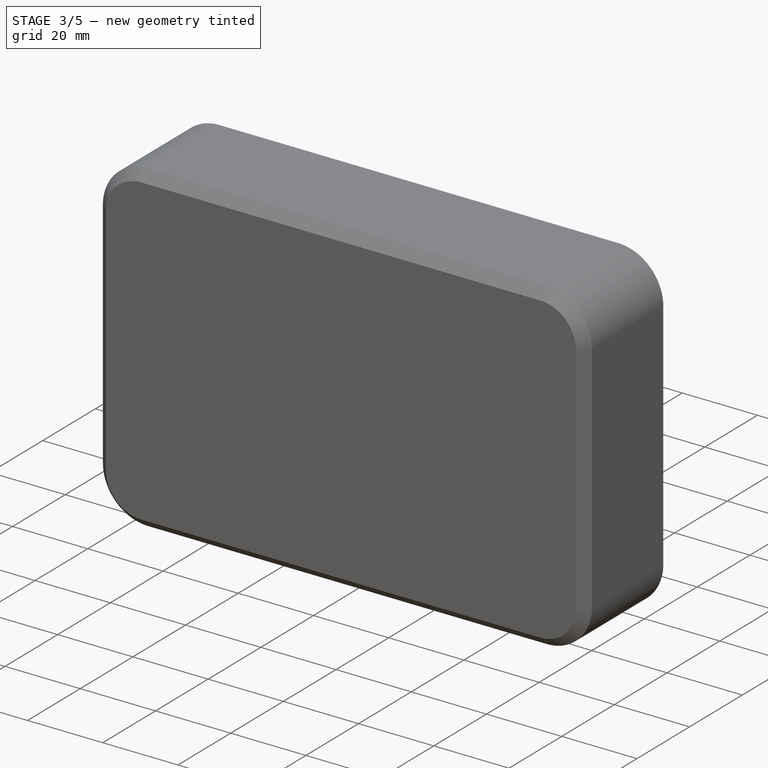
[diagram: stage 3 of 5 — iso view after this stage's code; geometry added in this stage tinted green]
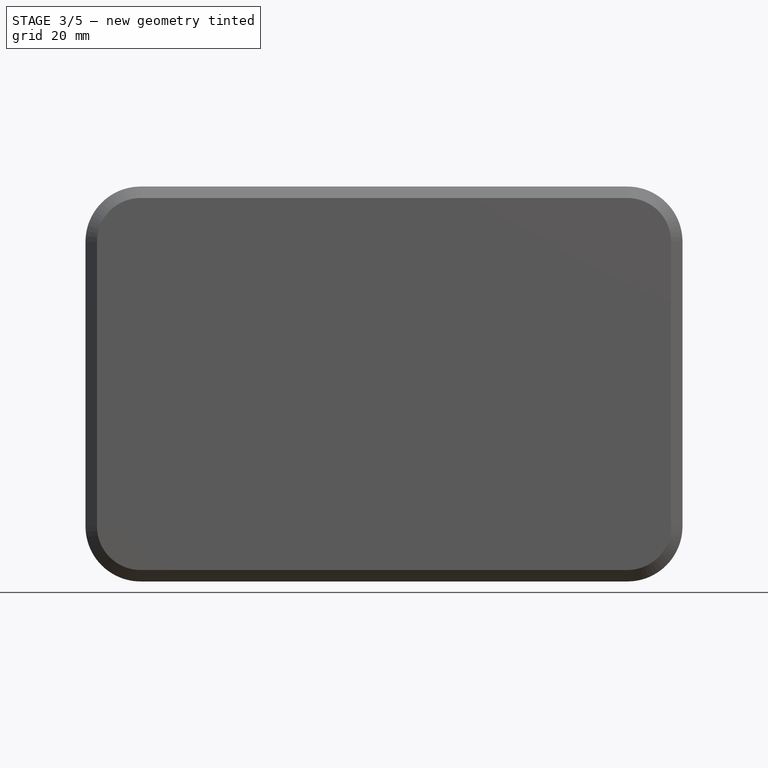
[diagram: stage 3 of 5 — front view after this stage's code; geometry added in this stage tinted green]
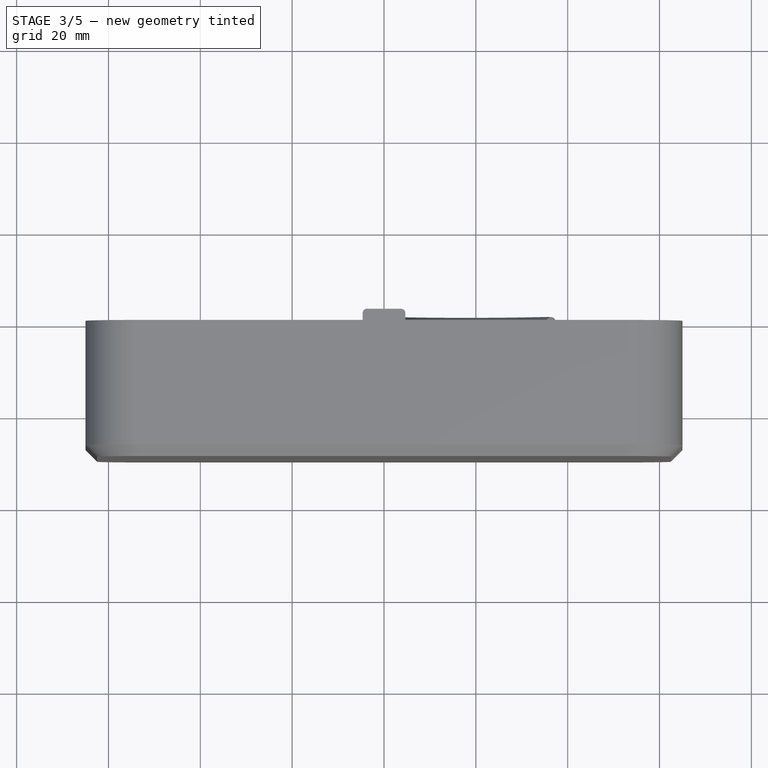
[diagram: stage 3 of 5 — top view after this stage's code; geometry added in this stage tinted green]
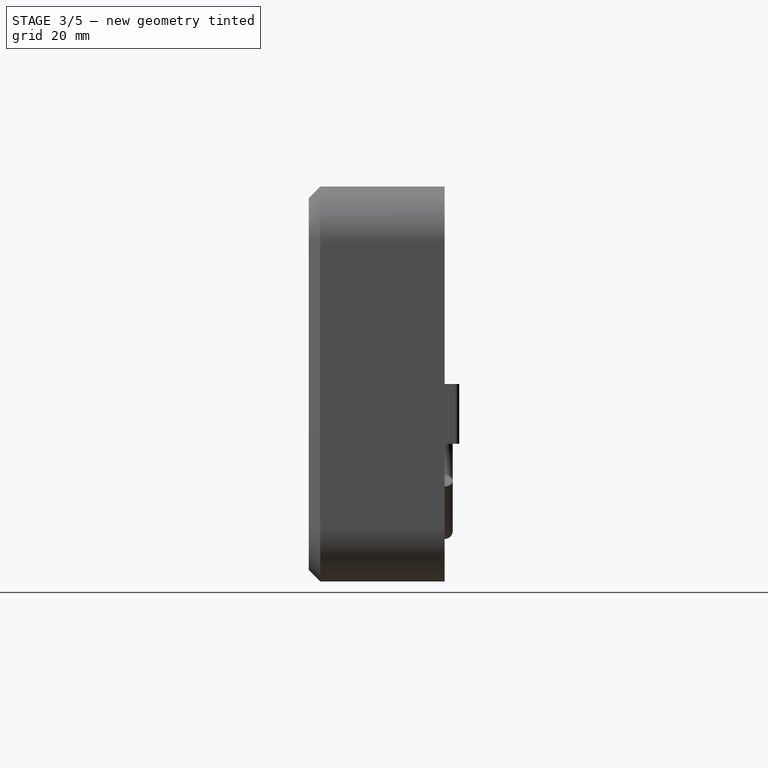
[diagram: stage 3 of 5 — right view after this stage's code; geometry added in this stage tinted green]
FEATURE [Part::FeaturePython] Nut002  label="M5-Nut016"  # Fasteners workbench fastener (typed FeaturePython)
  Placement = pos=(38,-18,-5) rot=(-1,0,0;1.5708rad)
  diameter = 7
  invert = false
  matchOuter = false
  offset = 0
  thread = false
  type = 7
FEATURE [PartDesign::Body] Body016  label="Housing"
  Group = -> [Sketch025,Pad015]
  Origin = -> Origin016
  Tip = -> Pad015
FEATURE [Part::Feature] Part__Feature004  label="mstb_2.5-2-g"
  Placement = pos=(-36.6267,-37.7727,-2.5) rot=(0,0,1;0rad)
  shape: bbox 12 x 12.1 x 10 mm, 208 faces (baked)
FEATURE [App::Part] mstb_2_5_2_g  label="mstb_2.5-2-g001"
  Group = -> [Part__Feature004]
  Origin = -> Origin023
FEATURE [Part::Feature] Part__Feature005  label="mstb_2.5-2-st"
  Placement = pos=(-48.6267,-39.1127,-2.5) rot=(0,0,1;0rad)
  shape: bbox 18.2 x 15 x 10 mm, 170 faces (baked)
FEATURE [App::Part] mstb_2_5_2_st  label="mstb_2.5-2-st001"
  Group = -> [Part__Feature005]
  Origin = -> Origin024
  Placement = pos=(12.1,1.35,0) rot=(0,0,1;0rad)
FEATURE [Part::Compound] Compound004  label="Phoenix"
  Links = -> [mstb_2_5_2_g,mstb_2_5_2_st]
  Placement = pos=(9,-18,-19) rot=(0,-1,0;1.5708rad)
FEATURE [Part::Feature] Part__Feature  label="MH-ET_LIVE_MiniKit"
  Placement = pos=(0,19.5,7e-15) rot=(1,0,0;1.5708rad)
  shape: bbox 31.02 x 39.44 x 99.68 mm, 5494 faces, 23 solids (baked)
FEATURE [Part::Compound] Compound005  label="ESP32"
  Links = -> [Part__Feature]
  Placement = pos=(-13,-15.5,-0.96) rot=(-1,0,0;1.5708rad)
FEATURE [Sketcher::SketchObject] Sketch033
  FullyConstrained = false
  MapMode = 5
  Placement = pos=(0,0,0) rot=(0.57735,0.57735,0.57735;2.0944rad)
  Support = -> [YZ_Plane026]
  sketch-geometry (4):
    g0: LineSegment StartX=-2.25 StartY=3.6 StartZ=0 EndX=2.25 EndY=3.6 EndZ=0
    g1: LineSegment StartX=2.25 StartY=3.6 StartZ=0 EndX=2.25 EndY=0 EndZ=0
    g2: LineSegment StartX=2.25 StartY=0 StartZ=0 EndX=-2.25 EndY=0 EndZ=0
    g3: LineSegment StartX=-2.25 StartY=0 StartZ=0 EndX=-2.25 EndY=3.6 EndZ=0
  constraints (11):
    c: Coincident(g0,g1)
    c: Coincident(g1,g2)
    c: Coincident(g2,g3)
    c: Coincident(g3,g0)
    c: Horizontal(g2)
    c: Vertical(g1)
    c: Vertical(g3)
    c: DistanceX(g0,g0) = 4.5
    c: DistanceY(g1,g1) = 3.6
    c: PointOnObject(g1,g-1)
    c: Symmetric(g0,g0,g-2)
FEATURE [PartDesign::Pad] Pad018
  Direction = (1,1,1)
  Length = 6.3
  Length2 = 100
  Midplane = true
  Placement = pos=(0,0,0) rot=(0.57735,0.57735,0.57735;2.0944rad)
  Profile = -> Sketch033
  Type = 0
FEATURE [PartDesign::Body] Body021  label="BodyDevice003"
  Group = -> [Sketch033,Pad018]
  Origin = -> Origin026
  Placement = pos=(0,14.75,0) rot=(0,0,1;0rad)
  Tip = -> Pad018
FEATURE [Sketcher::SketchObject] Sketch034
  FullyConstrained = false
  MapMode = 5
  Placement = pos=(0,0,0) rot=(1,0,0;1.5708rad)
  Support = -> [XZ_Plane027]
  sketch-geometry (10):
    g0: LineSegment StartX=0 StartY=1.9 StartZ=0 EndX=3.2 EndY=1.9 EndZ=0
    g1: LineSegment StartX=3.2 StartY=1.4 StartZ=0 EndX=0 EndY=1.4 EndZ=0
    g2: LineSegment StartX=0 StartY=1.4 StartZ=0 EndX=0 EndY=1.9 EndZ=0
    g3: LineSegment StartX=4 StartY=0.5 StartZ=0 EndX=5.5 EndY=0.5 EndZ=0
    g4: LineSegment StartX=5.5 StartY=0.5 StartZ=0 EndX=5.5 EndY=0 EndZ=0
    g5: LineSegment StartX=5.5 StartY=0 StartZ=0 EndX=4 EndY=0 EndZ=0
    g6: LineSegment StartX=3.2 StartY=1.4 StartZ=0 EndX=3.5221 EndY=0.352981 EndZ=0
    g7: LineSegment StartX=4 StartY=0.5 StartZ=0 EndX=3.6779 EndY=1.54702 EndZ=0
    g8: ArcOfCircle CenterX=3.2 CenterY=1.4 CenterZ=0 NormalX=0 NormalY=0 NormalZ=1 AngleXU=0 Radius=0.5 StartAngle=0.29845 EndAngle=1.5708
    g9: ArcOfCircle CenterX=4 CenterY=0.5 CenterZ=0 NormalX=0 NormalY=0 NormalZ=1 AngleXU=0 Radius=0.5 StartAngle=3.44004 EndAngle=4.71239
  constraints (26):
    c: Coincident(g1,g2)
    c: Coincident(g2,g0)
    c: Horizontal(g0)
    c: Horizontal(g1)
    c: Vertical(g2)
    c: PointOnObject(g0,g-2)
    c: Coincident(g3,g4)
    c: Coincident(g4,g5)
    c: Horizontal(g3)
    c: Horizontal(g5)
    c: Vertical(g4)
    c: PointOnObject(g4,g-1)
    c: Tangent(g0,g8) = 1.5708
    c: Tangent(g7,g8) = -1.5708
    c: Tangent(g6,g9) = -1.5708
    c: Tangent(g5,g9) = 1.5708
    c: Coincident(g3,g7)
    c: Coincident(g3,g9)
    c: Coincident(g1,g6)
    c: Coincident(g1,g8)
    c: Parallel(g6,g7)
    c: DistanceX(g3) = 5.5
    c: DistanceY(g4,g4) = 0.5
    c: DistanceX(g1) = 3.2
    c: DistanceY(g1) = 1.4
    c: DistanceX(g1,g3) = 0.8
FEATURE [PartDesign::Pad] Pad019
  Direction = (1,1,1)
  Length = 4
  Length2 = 100
  Midplane = true
  Placement = pos=(0,0,0) rot=(1,0,0;1.5708rad)
  Profile = -> Sketch034
  Type = 0
FEATURE [PartDesign::Mirrored] Mirrored005
  BaseFeature = -> Pad019
  MirrorPlane = -> YZ_Plane027
  Originals = -> [Pad019]
  Placement = pos=(0,0,0) rot=(1,0,0;1.5708rad)
FEATURE [Sketcher::SketchObject] Sketch035
  FullyConstrained = false
  MapMode = 5
  Support = -> [XY_Plane027]
  sketch-geometry (4):
    g0: LineSegment StartX=6 StartY=0.9 StartZ=0 EndX=1 EndY=0.9 EndZ=0
    g1: LineSegment StartX=1 StartY=0.9 StartZ=0 EndX=1 EndY=-0.9 EndZ=0
    g2: LineSegment StartX=1 StartY=-0.9 StartZ=0 EndX=6 EndY=-0.9 EndZ=0
    g3: LineSegment StartX=6 StartY=-0.9 StartZ=0 EndX=6 EndY=0.9 EndZ=0
  constraints (11):
    c: Coincident(g0,g1)
    c: Coincident(g1,g2)
    c: Coincident(g2,g3)
    c: Coincident(g3,g0)
    c: Horizontal(g0)
    c: Horizontal(g2)
    c: Vertical(g1)
    c: Symmetric(g0,g2,g-1)
    c: DistanceY(g3,g3) = 1.8
    c: DistanceX(g0) = 6
    c: DistanceX(g0) = 1
FEATURE [PartDesign::Pocket] Pocket005
  BaseFeature = -> Mirrored005
  Direction = (1,1,1)
  Length = 5
  Length2 = 100
  Midplane = true
  Placement = pos=(0,0,0) rot=(1,0,0;1.5708rad)
  Profile = -> Sketch035
  Type = 1
FEATURE [PartDesign::Mirrored] Mirrored006
  BaseFeature = -> Pocket005
  MirrorPlane = -> YZ_Plane027
  Originals = -> [Pocket005]
  Placement = pos=(0,0,0) rot=(1,0,0;1.5708rad)
FEATURE [PartDesign::Body] Body022  label="PinsDevice003"
  Group = -> [Sketch034,Pad019,Mirrored005,Sketch035,Pocket005,Mirrored006]
  Origin = -> Origin027
  Placement = pos=(0,14.75,0) rot=(0,0,1;0rad)
  Tip = -> Mirrored006
FEATURE [Sketcher::SketchObject] Sketch036
  FullyConstrained = false
  MapMode = 5
  Placement = pos=(0,0,0) rot=(0.57735,0.57735,0.57735;2.0944rad)
  Support = -> [YZ_Plane007]
  sketch-geometry (4):
    g0: LineSegment StartX=-2.25 StartY=3.6 StartZ=0 EndX=2.25 EndY=3.6 EndZ=0
    g1: LineSegment StartX=2.25 StartY=3.6 StartZ=0 EndX=2.25 EndY=0 EndZ=0
    g2: LineSegment StartX=2.25 StartY=0 StartZ=0 EndX=-2.25 EndY=0 EndZ=0
    g3: LineSegment StartX=-2.25 StartY=0 StartZ=0 EndX=-2.25 EndY=3.6 EndZ=0
  constraints (11):
    c: Coincident(g0,g1)
    c: Coincident(g1,g2)
    c: Coincident(g2,g3)
    c: Coincident(g3,g0)
    c: Horizontal(g2)
    c: Vertical(g1)
    c: Vertical(g3)
    c: DistanceX(g0,g0) = 4.5
    c: DistanceY(g1,g1) = 3.6
    c: PointOnObject(g1,g-1)
    c: Symmetric(g0,g0,g-2)
FEATURE [PartDesign::Pad] Pad021
  Direction = (1,1,1)
  Length = 6.3
  Length2 = 100
  Midplane = true
  Placement = pos=(0,0,0) rot=(0.57735,0.57735,0.57735;2.0944rad)
  Profile = -> Sketch036
  Type = 0
FEATURE [PartDesign::Body] Body007  label="BodyDevice004"
  Group = -> [Sketch036,Pad021]
  Origin = -> Origin008
  Placement = pos=(0,29.75,0) rot=(0,0,1;0rad)
  Tip = -> Pad021
FEATURE [Sketcher::SketchObject] Sketch013  label="Sketch037"
  FullyConstrained = false
  MapMode = 5
  Support = -> [XY_Plane007]
  sketch-geometry (4):
    g0: LineSegment StartX=6 StartY=0.9 StartZ=0 EndX=1 EndY=0.9 EndZ=0
    g1: LineSegment StartX=1 StartY=0.9 StartZ=0 EndX=1 EndY=-0.9 EndZ=0
    g2: LineSegment StartX=1 StartY=-0.9 StartZ=0 EndX=6 EndY=-0.9 EndZ=0
    g3: LineSegment StartX=6 StartY=-0.9 StartZ=0 EndX=6 EndY=0.9 EndZ=0
  constraints (11):
    c: Coincident(g0,g1)
    c: Coincident(g1,g2)
    c: Coincident(g2,g3)
    c: Coincident(g3,g0)
    c: Horizontal(g0)
    c: Horizontal(g2)
    c: Vertical(g1)
    c: Symmetric(g0,g2,g-1)
    c: DistanceY(g3,g3) = 1.8
    c: DistanceX(g0) = 6
    c: DistanceX(g0) = 1
FEATURE [Sketcher::SketchObject] Sketch037  label="Sketch038"
  FullyConstrained = false
  MapMode = 5
  Placement = pos=(0,0,0) rot=(1,0,0;1.5708rad)
  Support = -> [XZ_Plane008]
  sketch-geometry (10):
    g0: LineSegment StartX=0 StartY=1.9 StartZ=0 EndX=3.2 EndY=1.9 EndZ=0
    g1: LineSegment StartX=3.2 StartY=1.4 StartZ=0 EndX=0 EndY=1.4 EndZ=0
    g2: LineSegment StartX=0 StartY=1.4 StartZ=0 EndX=0 EndY=1.9 EndZ=0
    g3: LineSegment StartX=4 StartY=0.5 StartZ=0 EndX=5.5 EndY=0.5 EndZ=0
    g4: LineSegment StartX=5.5 StartY=0.5 StartZ=0 EndX=5.5 EndY=0 EndZ=0
    g5: LineSegment StartX=5.5 StartY=0 StartZ=0 EndX=4 EndY=0 EndZ=0
    g6: LineSegment StartX=3.2 StartY=1.4 StartZ=0 EndX=3.5221 EndY=0.352981 EndZ=0
    g7: LineSegment StartX=4 StartY=0.5 StartZ=0 EndX=3.6779 EndY=1.54702 EndZ=0
    g8: ArcOfCircle CenterX=3.2 CenterY=1.4 CenterZ=0 NormalX=0 NormalY=0 NormalZ=1 AngleXU=0 Radius=0.5 StartAngle=0.29845 EndAngle=1.5708
    g9: ArcOfCircle CenterX=4 CenterY=0.5 CenterZ=0 NormalX=0 NormalY=0 NormalZ=1 AngleXU=0 Radius=0.5 StartAngle=3.44004 EndAngle=4.71239
  constraints (26):
    c: Coincident(g1,g2)
    c: Coincident(g2,g0)
    c: Horizontal(g0)
    c: Horizontal(g1)
    c: Vertical(g2)
    c: PointOnObject(g0,g-2)
    c: Coincident(g3,g4)
    c: Coincident(g4,g5)
    c: Horizontal(g3)
    c: Horizontal(g5)
    c: Vertical(g4)
    c: PointOnObject(g4,g-1)
    c: Tangent(g0,g8) = 1.5708
    c: Tangent(g7,g8) = -1.5708
    c: Tangent(g6,g9) = -1.5708
    c: Tangent(g5,g9) = 1.5708
    c: Coincident(g3,g7)
    c: Coincident(g3,g9)
    c: Coincident(g1,g6)
    c: Coincident(g1,g8)
    c: Parallel(g6,g7)
    c: DistanceX(g3) = 5.5
    c: DistanceY(g4,g4) = 0.5
    c: DistanceX(g1) = 3.2
    c: DistanceY(g1) = 1.4
    c: DistanceX(g1,g3) = 0.8
FEATURE [PartDesign::Pad] Pad020
  Direction = (1,1,1)
  Length = 4
  Length2 = 100
  Midplane = true
  Placement = pos=(0,0,0) rot=(1,0,0;1.5708rad)
  Profile = -> Sketch037
  Type = 0
FEATURE [PartDesign::Mirrored] Mirrored007
  BaseFeature = -> Pad020
  MirrorPlane = -> YZ_Plane008
  Originals = -> [Pad020]
  Placement = pos=(0,0,0) rot=(1,0,0;1.5708rad)
FEATURE [PartDesign::Pocket] Pocket006
  BaseFeature = -> Mirrored007
  Direction = (1,1,1)
  Length = 5
  Length2 = 100
  Midplane = true
  Placement = pos=(0,0,0) rot=(1,0,0;1.5708rad)
  Profile = -> Sketch013
  Type = 1
FEATURE [PartDesign::Mirrored] Mirrored008
  BaseFeature = -> Pocket006
  MirrorPlane = -> YZ_Plane008
  Originals = -> [Pocket006]
  Placement = pos=(0,0,0) rot=(1,0,0;1.5708rad)
FEATURE [PartDesign::Body] Body020  label="PCB002"
  Group = -> [Sketch032,Pad017,Sketch038,Pocket007,MultiTransform001,LinearPattern002,Mirrored009]
  Origin = -> Origin025
  Placement = pos=(0,17.1,0) rot=(0,0,1;0rad)
  Tip = -> MultiTransform001
FEATURE [Part::Compound] Compound006  label="OpenThermAdaptor"
  Links = -> [Body020,Body021,Body022,Body007,Body008]
  Placement = pos=(4.4,-23.12,-25) rot=(0.57735,0.57735,-0.57735;2.0944rad)
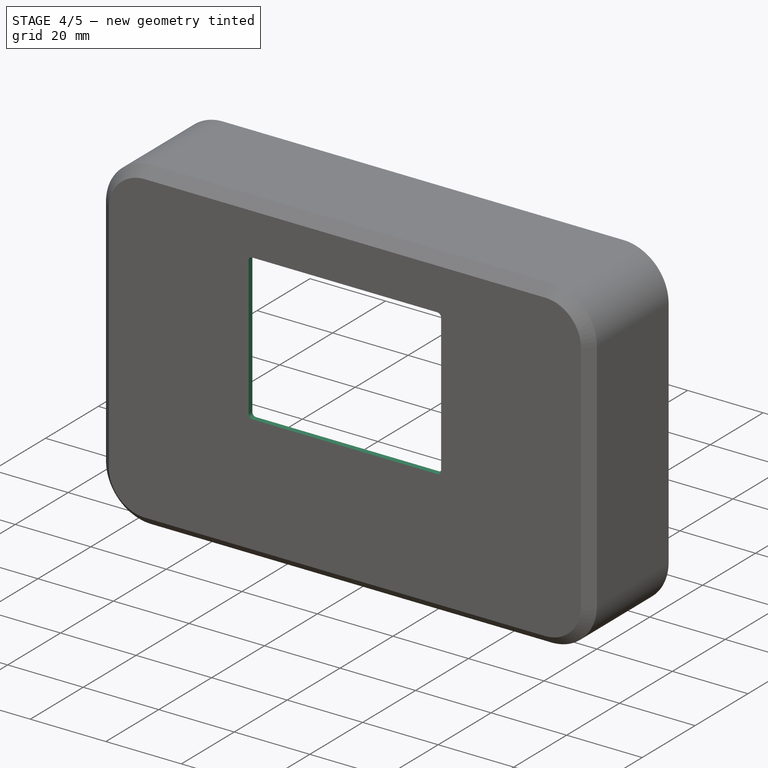
[diagram: stage 4 of 5 — iso view after this stage's code; geometry added in this stage tinted green]
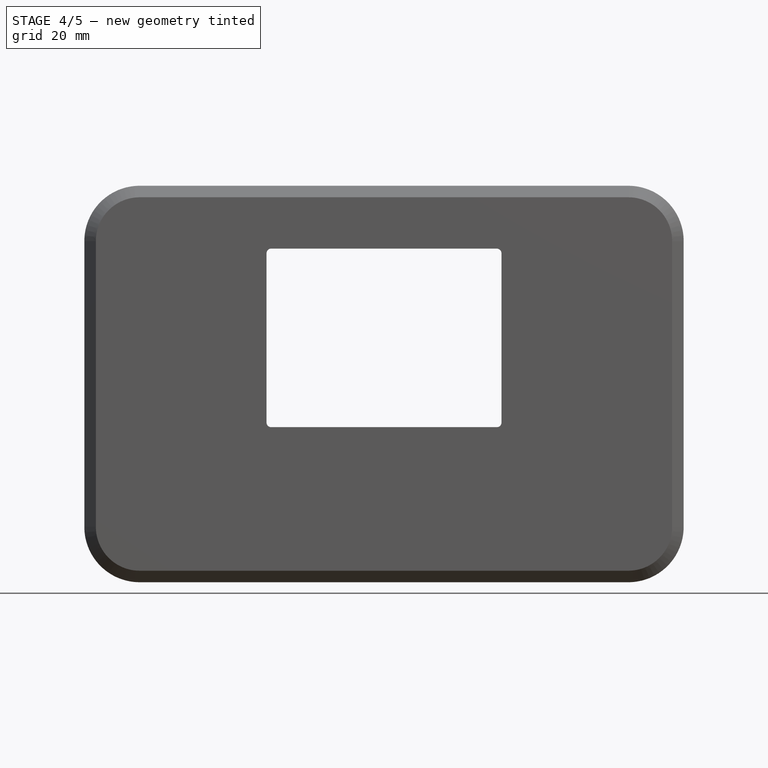
[diagram: stage 4 of 5 — front view after this stage's code; geometry added in this stage tinted green]
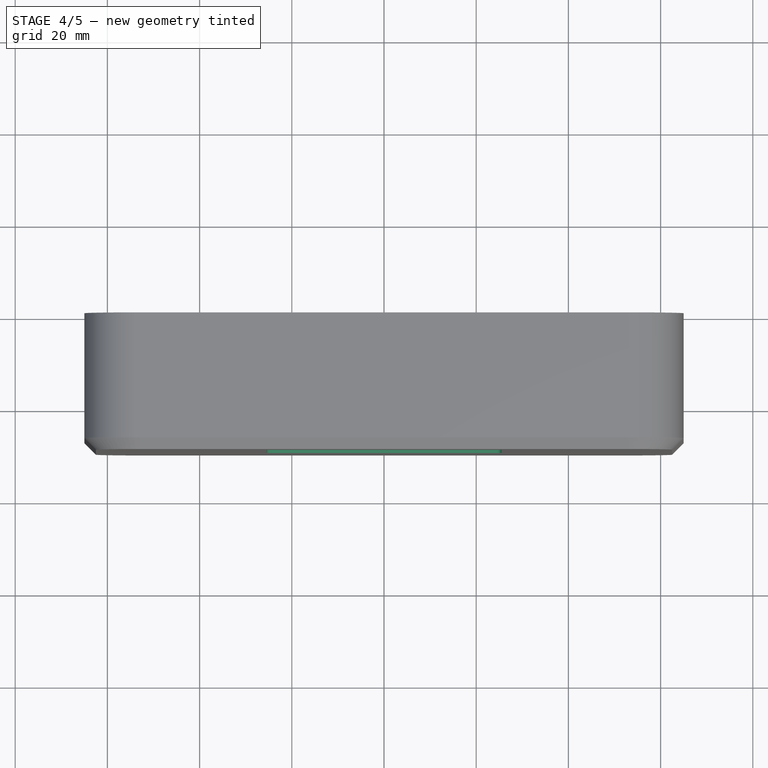
[diagram: stage 4 of 5 — top view after this stage's code; geometry added in this stage tinted green]
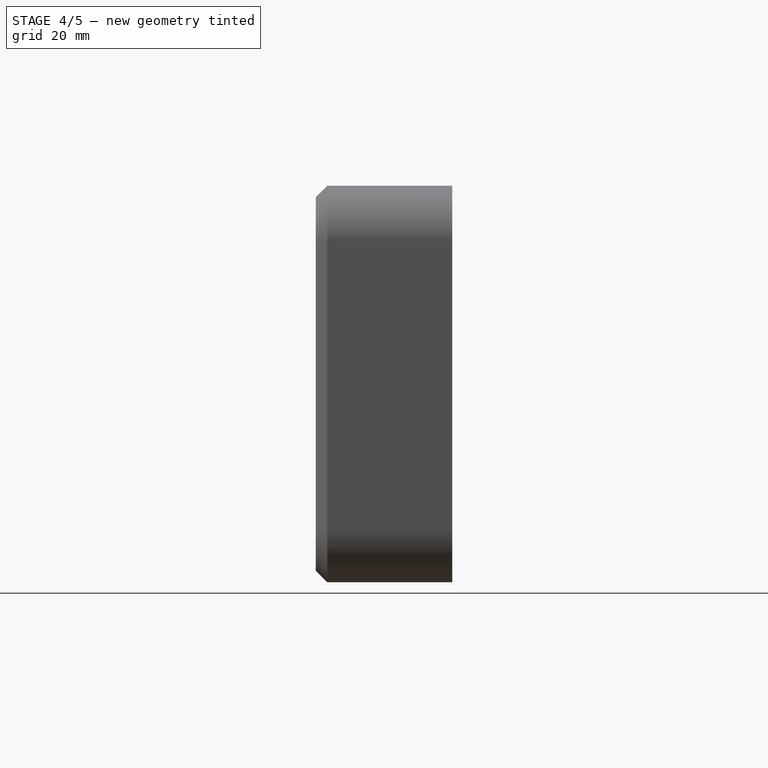
[diagram: stage 4 of 5 — right view after this stage's code; geometry added in this stage tinted green]
FEATURE [Sketcher::SketchObject] Sketch  label="gl base"
  FullyConstrained = true
  MapMode = 5
  Placement = pos=(0,0,0) rot=(1,0,0;1.5708rad)
  Support = -> [XZ_Plane]
  sketch-geometry (8):
    g0: LineSegment StartX=-33.28 StartY=21.36 StartZ=0 EndX=26.98 EndY=21.36 EndZ=0
    g1: LineSegment StartX=26.98 StartY=21.36 StartZ=0 EndX=26.98 EndY=-21.36 EndZ=0
    g2: LineSegment StartX=26.98 StartY=-21.36 StartZ=0 EndX=-33.28 EndY=-21.36 EndZ=0
    g3: LineSegment StartX=-33.28 StartY=-21.36 StartZ=0 EndX=-33.28 EndY=21.36 EndZ=0
    g4: LineSegment StartX=-24.48 StartY=18.36 StartZ=0 EndX=24.48 EndY=18.36 EndZ=0
    g5: LineSegment StartX=24.48 StartY=18.36 StartZ=0 EndX=24.48 EndY=-18.36 EndZ=0
    g6: LineSegment StartX=24.48 StartY=-18.36 StartZ=0 EndX=-24.48 EndY=-18.36 EndZ=0
    g7: LineSegment StartX=-24.48 StartY=-18.36 StartZ=0 EndX=-24.48 EndY=18.36 EndZ=0
  constraints (21):
    c: Coincident(g0,g1)
    c: Coincident(g1,g2)
    c: Coincident(g2,g3)
    c: Coincident(g3,g0)
    c: Horizontal(g2)
    c: Vertical(g3)
    c: DistanceX(g0,g0) = 60.26
    c: DistanceY(g1,g1) = 42.72
    c: Coincident(g4,g5)
    c: Coincident(g5,g6)
    c: Coincident(g6,g7)
    c: Coincident(g7,g4)
    c: Horizontal(g6)
    c: Vertical(g7)
    c: Horizontal(g0)
    c: Symmetric(g4,g4,g-2)
    c: Symmetric(g4,g5,g-1)
    c: DistanceX(g4,g4) = 48.96
    c: DistanceX(g4,g0) = 2.5
    c: DistanceY(g5,g5) = 36.72
    c: Symmetric(g0,g1,g-1)
FEATURE [PartDesign::Pad] Pad  label="GL Base"
  Direction = (1,1,1)
  Length = 4.2
  Length2 = 100
  Placement = pos=(0,0,0) rot=(1,0,0;1.5708rad)
  Profile = -> Sketch
  Reversed = true
  Type = 0
FEATURE [Sketcher::SketchObject] Sketch001  label="gl active area"
  FullyConstrained = true
  MapMode = 5
  Placement = pos=(0,0,0) rot=(1,0,0;1.5708rad)
  Support = -> [XZ_Plane]
  sketch-geometry (4):
    g0: LineSegment StartX=-24.48 StartY=18.36 StartZ=0 EndX=24.48 EndY=18.36 EndZ=0
    g1: LineSegment StartX=24.48 StartY=18.36 StartZ=0 EndX=24.48 EndY=-18.36 EndZ=0
    g2: LineSegment StartX=24.48 StartY=-18.36 StartZ=0 EndX=-24.48 EndY=-18.36 EndZ=0
    g3: LineSegment StartX=-24.48 StartY=-18.36 StartZ=0 EndX=-24.48 EndY=18.36 EndZ=0
  constraints (10):
    c: Coincident(g0,g1)
    c: Coincident(g1,g2)
    c: Coincident(g2,g3)
    c: Coincident(g3,g0)
    c: Horizontal(g2)
    c: Vertical(g3)
    c: Symmetric(g0,g0,g-2)
    c: Symmetric(g0,g1,g-1)
    c: DistanceY(g1,g1) = 36.72
    c: DistanceX(g0,g0) = 48.96
FEATURE [PartDesign::Pad] Pad001  label="GL active area"
  BaseFeature = -> Pad
  Direction = (1,1,1)
  Length = 0.1
  Length2 = 100
  Placement = pos=(0,0,0) rot=(1,0,0;1.5708rad)
  Profile = -> Sketch001
  Type = 0
FEATURE [PartDesign::Body] Body  label="Glass"
  Group = -> [Sketch,Pad,Sketch001,Pad001]
  Origin = -> Origin
  Tip = -> Pad001
FEATURE [Sketcher::SketchObject] Sketch003  label="pc skeleton"
  FullyConstrained = true
  MapMode = 5
  Placement = pos=(0,0,0) rot=(1,0,0;1.5708rad)
  Support = -> [XZ_Plane001]
  sketch-geometry (8):
    g0: LineSegment StartX=-33.28 StartY=21.36 StartZ=0 EndX=26.98 EndY=21.36 EndZ=0
    g1: LineSegment StartX=26.98 StartY=21.36 StartZ=0 EndX=26.98 EndY=-21.36 EndZ=0
    g2: LineSegment StartX=26.98 StartY=-21.36 StartZ=0 EndX=-33.28 EndY=-21.36 EndZ=0
    g3: LineSegment StartX=-33.28 StartY=-21.36 StartZ=0 EndX=-33.28 EndY=21.36 EndZ=0
    g4: LineSegment StartX=-24.48 StartY=18.36 StartZ=0 EndX=24.48 EndY=18.36 EndZ=0
    g5: LineSegment StartX=24.48 StartY=18.36 StartZ=0 EndX=24.48 EndY=-18.36 EndZ=0
    g6: LineSegment StartX=24.48 StartY=-18.36 StartZ=0 EndX=-24.48 EndY=-18.36 EndZ=0
    g7: LineSegment StartX=-24.48 StartY=-18.36 StartZ=0 EndX=-24.48 EndY=18.36 EndZ=0
  constraints (22):
    c: Coincident(g0,g1)
    c: Coincident(g1,g2)
    c: Coincident(g2,g3)
    c: Coincident(g3,g0)
    c: Horizontal(g2)
    c: Vertical(g3)
    c: DistanceX(g0,g0) = 60.26
    c: DistanceY(g1,g1) = 42.72
    c: Coincident(g4,g5)
    c: Coincident(g5,g6)
    c: Coincident(g6,g7)
    c: Coincident(g7,g4)
    c: Horizontal(g6)
    c: Vertical(g7)
    c: Horizontal(g0)
    c: Symmetric(g4,g4,g-2)
    c: Symmetric(g4,g5,g-1)
    c: DistanceX(g4,g4) = 48.96
    c: DistanceX(g4,g0) = 2.5
    c: DistanceY(g5,g5) = 36.72
    c: Symmetric(g0,g1,g-1)
    c: DistanceX(g0,g-1) = 33.28
FEATURE [Sketcher::SketchObject] Sketch002  label="pc base"
  AttachmentOffset = pos=(0,0,-4.2) rot=(0,0,1;0rad)
  ExternalGeometry = -> [Sketch003]
  FullyConstrained = true
  MapMode = 5
  Placement = pos=(0,4.2,9e-16) rot=(1,0,0;1.5708rad)
  Support = -> [XZ_Plane001]
  sketch-geometry (12):
    g0: LineSegment StartX=33.49 StartY=21.45 StartZ=0 EndX=-43.69 EndY=21.45 EndZ=0
    g1: LineSegment StartX=-43.69 StartY=21.45 StartZ=0 EndX=-43.69 EndY=-21.45 EndZ=0
    g2: LineSegment StartX=-43.69 StartY=-21.45 StartZ=0 EndX=33.49 EndY=-21.45 EndZ=0
    g3: LineSegment StartX=33.49 StartY=-21.45 StartZ=0 EndX=33.49 EndY=21.45 EndZ=0
    g4: LineSegment StartX=-36.77 StartY=18.45 StartZ=0 EndX=30.49 EndY=18.45 EndZ=0
    g5: LineSegment StartX=30.49 StartY=18.45 StartZ=0 EndX=30.49 EndY=-18.45 EndZ=0
    g6: LineSegment StartX=30.49 StartY=-18.45 StartZ=0 EndX=-36.77 EndY=-18.45 EndZ=0
    g7: LineSegment StartX=-36.77 StartY=-18.45 StartZ=0 EndX=-36.77 EndY=18.45 EndZ=0
    g8: Circle CenterX=30.49 CenterY=18.45 CenterZ=0 NormalX=0 NormalY=0 NormalZ=1 AngleXU=0 Radius=1.5
    g9: Circle CenterX=30.49 CenterY=-18.45 CenterZ=0 NormalX=0 NormalY=0 NormalZ=1 AngleXU=0 Radius=1.5
    g10: Circle CenterX=-36.77 CenterY=-18.45 CenterZ=0 NormalX=0 NormalY=0 NormalZ=1 AngleXU=0 Radius=1.5
    g11: Circle CenterX=-36.77 CenterY=18.45 CenterZ=0 NormalX=0 NormalY=0 NormalZ=1 AngleXU=0 Radius=1.5
  constraints (31):
    c: Coincident(g0,g1)
    c: Coincident(g1,g2)
    c: Coincident(g2,g3)
    c: Coincident(g3,g0)
    c: Horizontal(g0)
    c: Horizontal(g2)
    c: Vertical(g1)
    c: Symmetric(g0,g2,g-1)
    c: DistanceX(g0,g-3) = 10.41
    c: DistanceX(g0,g0) = 77.18
    c: DistanceY(g3,g3) = 42.9
    c: Coincident(g4,g5)
    c: Coincident(g5,g6)
    c: Coincident(g6,g7)
    c: Coincident(g7,g4)
    c: Horizontal(g4)
    c: Horizontal(g6)
    c: Vertical(g7)
    c: Symmetric(g4,g5,g-1)
    c: Coincident(g8,g4)
    c: Coincident(g9,g5)
    c: Coincident(g10,g6)
    c: Coincident(g11,g4)
    c: Equal(g8,g11)
    c: Equal(g11,g10)
    c: Equal(g10,g9)
    c: Radius(g9) = 1.5
    c: DistanceX(g0,g11) = 6.92
    c: DistanceX(g8,g0) = 3
    c: DistanceY(g8,g0) = 3
    c: DistanceX(g0,g-1) = 43.69
FEATURE [PartDesign::Pad] Pad002  label="PC base"
  Direction = (1,1,1)
  Length = 1.6
  Length2 = 100
  Placement = pos=(0,0,0) rot=(1,0,0;1.5708rad)
  Profile = -> Sketch002
  Reversed = true
  Type = 0
FEATURE [Sketcher::SketchObject] Sketch004  label="pc hole"
  ExternalGeometry = -> [Sketch002]
  FullyConstrained = true
  MapMode = 5
  Placement = pos=(0,0,0) rot=(1,0,0;1.5708rad)
  Support = -> [XZ_Plane001]
  sketch-geometry (1):
    g0: Circle CenterX=-41.69 CenterY=-16.51 CenterZ=0 NormalX=0 NormalY=0 NormalZ=1 AngleXU=0 Radius=0.5
  constraints (3):
    c: Radius(g0) = 0.5
    c: DistanceY(g0,g-1) = 16.51
    c: DistanceX(g0,g-1) = 41.69
FEATURE [PartDesign::Pocket] Pocket  label="PC FirstHole"
  BaseFeature = -> Pad002
  Direction = (1,1,1)
  Length = 5
  Length2 = 100
  Midplane = true
  Placement = pos=(0,0,0) rot=(1,0,0;1.5708rad)
  Profile = -> Sketch004
  Type = 1
FEATURE [PartDesign::LinearPattern] LinearPattern  label="PC OtherHoles"
  BaseFeature = -> Pocket
  Direction = -> Z_Axis001
  Length = 33.02
  Occurrences = 14
  Originals = -> [Pocket]
  Placement = pos=(0,0,0) rot=(1,0,0;1.5708rad)
FEATURE [PartDesign::Body] Body001  label="PCB"
  Group = -> [Sketch002,Sketch003,Pad002,Sketch004,Pocket,LinearPattern]
  Origin = -> Origin001
  Tip = -> LinearPattern
FEATURE [Sketcher::SketchObject] Sketch006  label="sd skeleton"
  FullyConstrained = true
  MapMode = 5
  Placement = pos=(0,0,0) rot=(1,0,0;1.5708rad)
  Support = -> [XZ_Plane002]
  sketch-geometry (8):
    g0: LineSegment StartX=-33.28 StartY=21.36 StartZ=0 EndX=26.98 EndY=21.36 EndZ=0
    g1: LineSegment StartX=26.98 StartY=21.36 StartZ=0 EndX=26.98 EndY=-21.36 EndZ=0
    g2: LineSegment StartX=26.98 StartY=-21.36 StartZ=0 EndX=-33.28 EndY=-21.36 EndZ=0
    g3: LineSegment StartX=-33.28 StartY=-21.36 StartZ=0 EndX=-33.28 EndY=21.36 EndZ=0
    g4: LineSegment StartX=-24.48 StartY=18.36 StartZ=0 EndX=24.48 EndY=18.36 EndZ=0
    g5: LineSegment StartX=24.48 StartY=18.36 StartZ=0 EndX=24.48 EndY=-18.36 EndZ=0
    g6: LineSegment StartX=24.48 StartY=-18.36 StartZ=0 EndX=-24.48 EndY=-18.36 EndZ=0
    g7: LineSegment StartX=-24.48 StartY=-18.36 StartZ=0 EndX=-24.48 EndY=18.36 EndZ=0
  constraints (21):
    c: Coincident(g0,g1)
    c: Coincident(g1,g2)
    c: Coincident(g2,g3)
    c: Coincident(g3,g0)
    c: Horizontal(g2)
    c: Vertical(g3)
    c: DistanceX(g0,g0) = 60.26
    c: DistanceY(g1,g1) = 42.72
    c: Coincident(g4,g5)
    c: Coincident(g5,g6)
    c: Coincident(g6,g7)
    c: Coincident(g7,g4)
    c: Horizontal(g6)
    c: Vertical(g7)
    c: Horizontal(g0)
    c: Symmetric(g4,g4,g-2)
    c: Symmetric(g4,g5,g-1)
    c: DistanceX(g4,g4) = 48.96
    c: DistanceX(g4,g0) = 2.5
    c: DistanceY(g5,g5) = 36.72
    c: Symmetric(g0,g1,g-1)
FEATURE [Sketcher::SketchObject] Sketch005  label="sd base"
  AttachmentOffset = pos=(0,0,-5.8) rot=(0,0,1;0rad)
  ExternalGeometry = -> [Sketch006]
  FullyConstrained = true
  MapMode = 5
  Placement = pos=(0,5.8,1.3e-15) rot=(1,0,0;1.5708rad)
  Support = -> [XZ_Plane002]
  sketch-geometry (6):
    g0: LineSegment StartX=-16.02 StartY=19.96 StartZ=0 EndX=10.58 EndY=19.96 EndZ=0
    g1: LineSegment StartX=10.58 StartY=19.96 StartZ=0 EndX=10.58 EndY=10.96 EndZ=0
    g2: LineSegment StartX=8.48 StartY=3.26 StartZ=0 EndX=-16.02 EndY=3.26 EndZ=0
    g3: LineSegment StartX=-16.02 StartY=3.26 StartZ=0 EndX=-16.02 EndY=19.96 EndZ=0
    g4: LineSegment StartX=10.58 StartY=10.96 StartZ=0 EndX=8.48 EndY=8.86 EndZ=0
    g5: LineSegment StartX=8.48 StartY=8.86 StartZ=0 EndX=8.48 EndY=3.26 EndZ=0
  constraints (18):
    c: Coincident(g0,g1)
    c: Coincident(g2,g3)
    c: Coincident(g3,g0)
    c: Horizontal(g0)
    c: Horizontal(g2)
    c: Vertical(g1)
    c: Vertical(g3)
    c: DistanceX(g0,g-3) = 16.4
    c: DistanceX(g0,g0) = 26.6
    c: DistanceY(g0,g-3) = 1.4
    c: Coincident(g4,g5)
    c: Vertical(g5)
    c: Coincident(g2,g5)
    c: Coincident(g4,g1)
    c: DistanceY(g2,g0) = 16.7
    c: DistanceX(g2,g2) = 24.5
    c: DistanceY(g5,g5) = 5.6
    c: Angle(g5,g4) = 2.35619
FEATURE [PartDesign::Pad] Pad003  label="SD Base"
  Direction = (1,1,1)
  Length = 2.9
  Length2 = 100
  Placement = pos=(0,0,0) rot=(1,0,0;1.5708rad)
  Profile = -> Sketch005
  Reversed = true
  Type = 0
FEATURE [PartDesign::Body] Body002  label="SD Card Slot"
  Group = -> [Sketch005,Sketch006,Pad003]
  Origin = -> Origin002
  Tip = -> Pad003
FEATURE [Sketcher::SketchObject] Sketch009  label="cm skeleton"
  AttachmentOffset = pos=(0,0,-4.2) rot=(0,0,1;0rad)
  ExternalGeometry = -> [Sketch003]
  FullyConstrained = true
  MapMode = 5
  Placement = pos=(0,4.2,9e-16) rot=(1,0,0;1.5708rad)
  Support = -> [XZ_Plane003]
  sketch-geometry (12):
    g0: LineSegment StartX=33.49 StartY=21.45 StartZ=0 EndX=-43.69 EndY=21.45 EndZ=0
    g1: LineSegment StartX=-43.69 StartY=21.45 StartZ=0 EndX=-43.69 EndY=-21.45 EndZ=0
    g2: LineSegment StartX=-43.69 StartY=-21.45 StartZ=0 EndX=33.49 EndY=-21.45 EndZ=0
    g3: LineSegment StartX=33.49 StartY=-21.45 StartZ=0 EndX=33.49 EndY=21.45 EndZ=0
    g4: LineSegment StartX=-36.77 StartY=18.45 StartZ=0 EndX=30.49 EndY=18.45 EndZ=0
    g5: LineSegment StartX=30.49 StartY=18.45 StartZ=0 EndX=30.49 EndY=-18.45 EndZ=0
    g6: LineSegment StartX=30.49 StartY=-18.45 StartZ=0 EndX=-36.77 EndY=-18.45 EndZ=0
    g7: LineSegment StartX=-36.77 StartY=-18.45 StartZ=0 EndX=-36.77 EndY=18.45 EndZ=0
    g8: Circle CenterX=30.49 CenterY=18.45 CenterZ=0 NormalX=0 NormalY=0 NormalZ=1 AngleXU=0 Radius=1.5
    g9: Circle CenterX=30.49 CenterY=-18.45 CenterZ=0 NormalX=0 NormalY=0 NormalZ=1 AngleXU=0 Radius=1.5
    g10: Circle CenterX=-36.77 CenterY=-18.45 CenterZ=0 NormalX=0 NormalY=0 NormalZ=1 AngleXU=0 Radius=1.5
    g11: Circle CenterX=-36.77 CenterY=18.45 CenterZ=0 NormalX=0 NormalY=0 NormalZ=1 AngleXU=0 Radius=1.5
  constraints (30):
    c: Coincident(g0,g1)
    c: Coincident(g1,g2)
    c: Coincident(g2,g3)
    c: Coincident(g3,g0)
    c: Horizontal(g0)
    c: Horizontal(g2)
    c: Vertical(g1)
    c: Symmetric(g0,g2,g-1)
    c: DistanceX(g0,g-3) = 10.41
    c: DistanceX(g0,g0) = 77.18
    c: DistanceY(g3,g3) = 42.9
    c: Coincident(g4,g5)
    c: Coincident(g5,g6)
    c: Coincident(g6,g7)
    c: Coincident(g7,g4)
    c: Horizontal(g4)
    c: Horizontal(g6)
    c: Vertical(g7)
    c: Symmetric(g4,g5,g-1)
    c: Coincident(g8,g4)
    c: Coincident(g9,g5)
    c: Coincident(g10,g6)
    c: Coincident(g11,g4)
    c: Equal(g8,g11)
    c: Equal(g11,g10)
    c: Equal(g10,g9)
    c: Radius(g9) = 1.5
    c: DistanceX(g0,g11) = 6.92
    c: DistanceX(g8,g0) = 3
    c: DistanceY(g8,g0) = 3
FEATURE [Sketcher::SketchObject] Sketch010  label="cm components"
  AttachmentOffset = pos=(0,0,-5.8) rot=(0,0,1;0rad)
  ExternalGeometry = -> [Sketch009]
  FullyConstrained = true
  MapMode = 5
  Placement = pos=(0,5.8,1.3e-15) rot=(1,0,0;1.5708rad)
  Support = -> [XZ_Plane003]
  sketch-geometry (4):
    g0: LineSegment StartX=-27.99 StartY=2.05 StartZ=0 EndX=6.01 EndY=2.05 EndZ=0
    g1: LineSegment StartX=6.01 StartY=2.05 StartZ=0 EndX=6.01 EndY=-17.45 EndZ=0
    g2: LineSegment StartX=6.01 StartY=-17.45 StartZ=0 EndX=-27.99 EndY=-17.45 EndZ=0
    g3: LineSegment StartX=-27.99 StartY=-17.45 StartZ=0 EndX=-27.99 EndY=2.05 EndZ=0
  constraints (12):
    c: Coincident(g0,g1)
    c: Coincident(g1,g2)
    c: Coincident(g2,g3)
    c: Coincident(g3,g0)
    c: Horizontal(g0)
    c: Horizontal(g2)
    c: Vertical(g1)
    c: Vertical(g3)
    c: DistanceX(g-3,g2) = 15.7
    c: DistanceX(g0,g0) = 34
    c: DistanceY(g-3,g2) = 4
    c: DistanceY(g1,g1) = 19.5
FEATURE [PartDesign::Pad] Pad004
  Direction = (1,1,1)
  Length = 1
  Length2 = 100
  Placement = pos=(0,0,0) rot=(1,0,0;1.5708rad)
  Profile = -> Sketch010
  Reversed = true
  Type = 0
FEATURE [PartDesign::Body] Body003  label="Components"
  Group = -> [Sketch009,Sketch010,Pad004]
  Origin = -> Origin003
  Tip = -> Pad004
FEATURE [Part::Compound] Compound  label="Display"
  Links = -> [Body,Body001,Body002,Body003]
  Placement = pos=(0,-27.92,10) rot=(0,0,1;0rad)
FEATURE [Part::FeaturePython] Screw  label="M5x16-Screw"  # Fasteners workbench fastener (typed FeaturePython)
  Placement = pos=(38,-29.5,25) rot=(1,0,0;1.5708rad)
  diameter = 3
  invert = false
  length = 4
  lengthCustom = 16
  matchOuter = false
  offset = 0
  thread = false
  type = 40
FEATURE [Part::FeaturePython] Screw001  label="M5x16-Screw015"  # Fasteners workbench fastener (typed FeaturePython)
  Placement = pos=(38,-29.5,10) rot=(1,0,0;1.5708rad)
  diameter = 3
  invert = false
  length = 4
  lengthCustom = 16
  matchOuter = false
  offset = 0
  thread = false
  type = 40
FEATURE [Part::FeaturePython] Screw002  label="M5x16-Screw016"  # Fasteners workbench fastener (typed FeaturePython)
  Placement = pos=(38,-29.5,-5) rot=(1,0,0;1.5708rad)
  diameter = 3
  invert = false
  length = 4
  lengthCustom = 16
  matchOuter = false
  offset = 0
  thread = false
  type = 40
FEATURE [Part::FeaturePython] Nut  label="M5-Nut"  # Fasteners workbench fastener (typed FeaturePython)
  Placement = pos=(38,-18,25) rot=(-1,0,0;1.5708rad)
  diameter = 7
  invert = false
  matchOuter = false
  offset = 0
  thread = false
  type = 7
FEATURE [Part::FeaturePython] Nut001  label="M5-Nut015"  # Fasteners workbench fastener (typed FeaturePython)
  Placement = pos=(38,-18,10) rot=(-1,0,0;1.5708rad)
  diameter = 7
  invert = false
  matchOuter = false
  offset = 0
  thread = false
  type = 7
FEATURE [Part::Feature] Part__Feature006  label="Interconnect PCB PCB"
  shape: bbox 96 x 75 x 1.6 mm, 115 faces (baked)
FEATURE [App::Part] InterconnectPCB_1  label="InterconnectPCB 1"
  Group = -> [Part__Feature006]
  Origin = -> Origin062
  Placement = pos=(0,-18,-4e-15) rot=(1,0,0;1.5708rad)
FEATURE [Sketcher::SketchObject] Sketch128  label="th housing base"
  FullyConstrained = true
  MapMode = 5
  Placement = pos=(0,0,0) rot=(1,0,0;1.5708rad)
  Support = -> [XZ_Plane063]
  sketch-geometry (10):
    g0: ArcOfCircle CenterX=-53 CenterY=31 CenterZ=0 NormalX=0 NormalY=0 NormalZ=1 AngleXU=0 Radius=12 StartAngle=1.5708 EndAngle=3.14159
    g1: LineSegment StartX=-53 StartY=43 StartZ=0 EndX=53 EndY=43 EndZ=0
    g2: ArcOfCircle CenterX=53 CenterY=31 CenterZ=0 NormalX=0 NormalY=0 NormalZ=1 AngleXU=0 Radius=12 StartAngle=0 EndAngle=1.5708
    g3: LineSegment StartX=65 StartY=31 StartZ=0 EndX=65 EndY=-31 EndZ=0
    g4: ArcOfCircle CenterX=53 CenterY=-31 CenterZ=0 NormalX=0 NormalY=0 NormalZ=1 AngleXU=0 Radius=12 StartAngle=4.71239 EndAngle=6.28319
    g5: LineSegment StartX=53 StartY=-43 StartZ=0 EndX=-53 EndY=-43 EndZ=0
    g6: ArcOfCircle CenterX=-53 CenterY=-31 CenterZ=0 NormalX=0 NormalY=0 NormalZ=1 AngleXU=0 Radius=12 StartAngle=3.14159 EndAngle=4.71239
    g7: LineSegment StartX=-65 StartY=-31 StartZ=0 EndX=-65 EndY=31 EndZ=0
    g8: GeomPoint X=-65 Y=43 Z=0
    g9: GeomPoint X=65 Y=-43 Z=0
  constraints (22):
    c: Tangent(g0,g1) = 1.5708
    c: Tangent(g1,g2) = 1.5708
    c: Tangent(g2,g3) = 1.5708
    c: Tangent(g3,g4) = 1.5708
    c: Tangent(g4,g5) = 1.5708
    c: Tangent(g5,g6) = 1.5708
    c: Tangent(g6,g7) = 1.5708
    c: Tangent(g7,g0) = 1.5708
    c: Horizontal(g1)
    c: Horizontal(g5)
    c: Vertical(g3)
    c: Vertical(g7)
    c: Equal(g4,g6)
    c: PointOnObject(g8,g1)
    c: PointOnObject(g8,g7)
    c: PointOnObject(g9,g3)
    c: PointOnObject(g9,g5)
    c: Symmetric(g4,g2,g-1)
    c: Symmetric(g2,g0,g-2)
    c: Radius(g2) = 12
    c: DistanceY(g4,g1) = 86
    c: DistanceX(g0,g2) = 130
FEATURE [Part::Compound] Compound011  label="Electronics"
  Links = -> [Compound,Screw,Screw001,Screw002,Nut,Nut001,Nut002,Part,Compound005,Compound006,Compound007,Compound008,Compound009,Compound010,InterconnectPCB_1,Compound004]
FEATURE [PartDesign::Pocket] Pocket009  label="TH Screen cavity"
  BaseFeature = -> Chamfer
  Direction = (0,1,2e-16)
  Length = 5
  Length2 = 5
  Midplane = true
  Placement = pos=(0,0,0) rot=(1,0,0;1.5708rad)
  Profile = -> Sketch130
  ReferenceAxis = -> Sketch130 [N_Axis]
  Type = 1
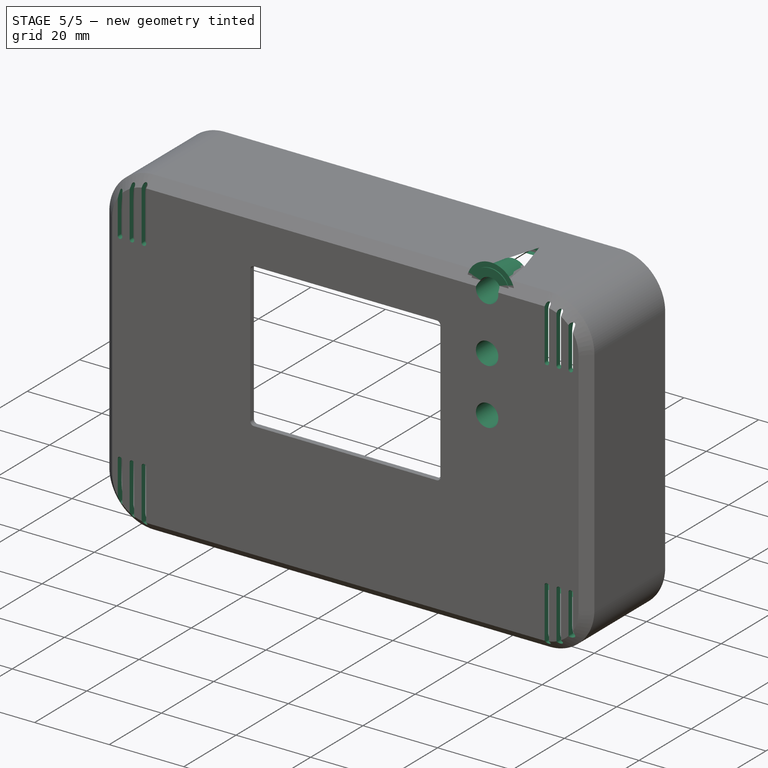
[diagram: stage 5 of 5 — iso view after this stage's code; geometry added in this stage tinted green]
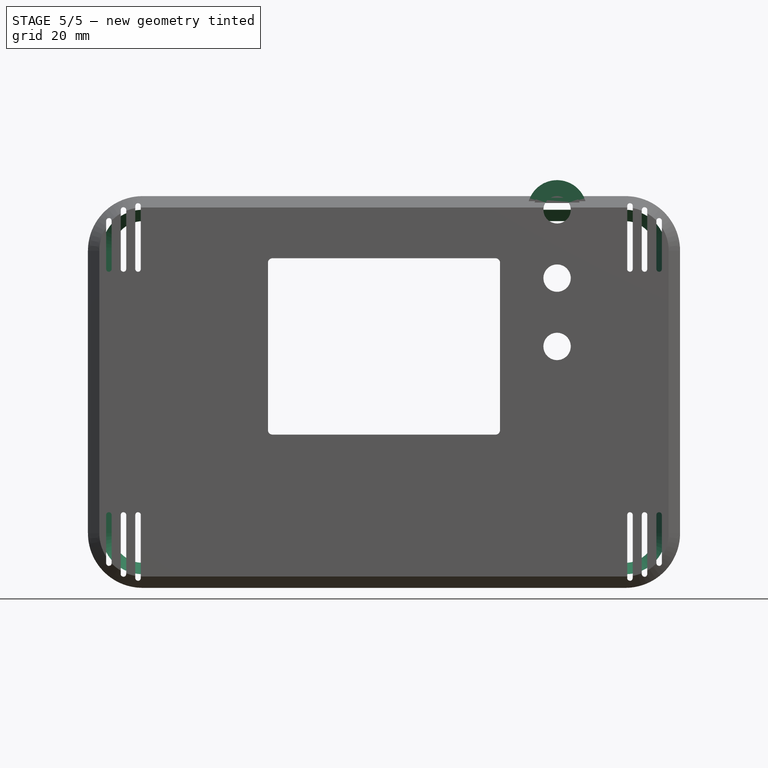
[diagram: stage 5 of 5 — front view after this stage's code; geometry added in this stage tinted green]
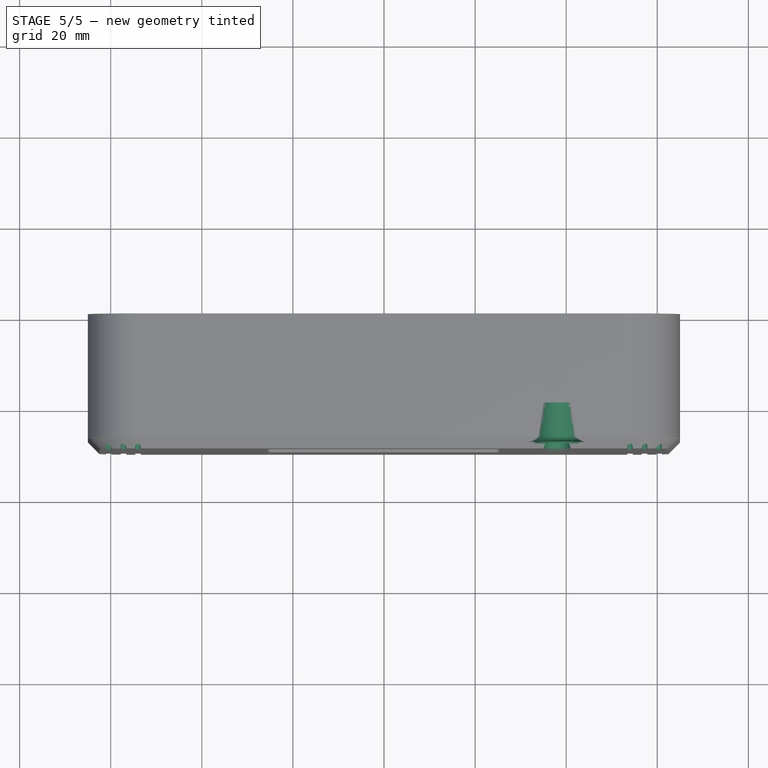
[diagram: stage 5 of 5 — top view after this stage's code; geometry added in this stage tinted green]
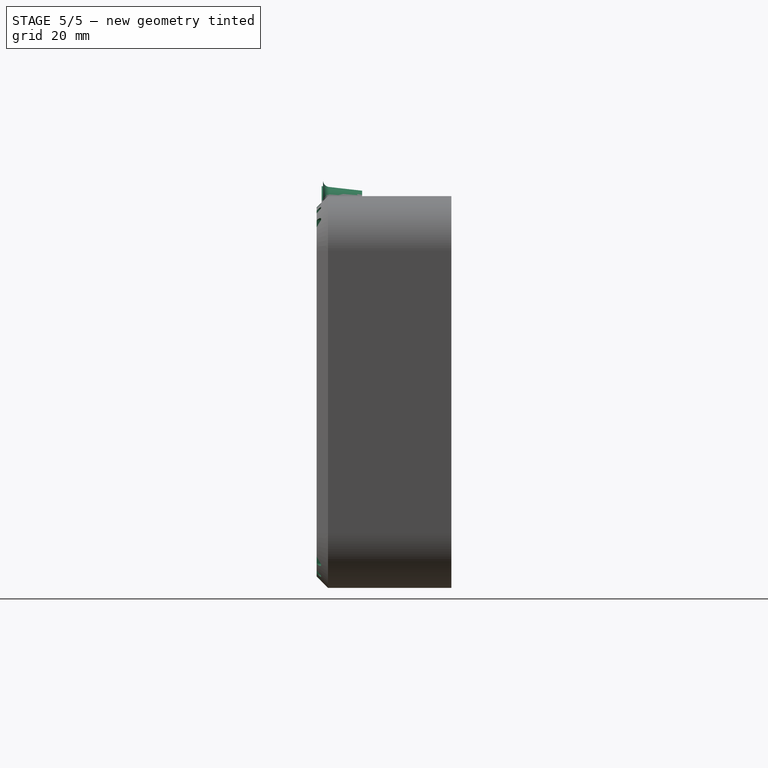
[diagram: stage 5 of 5 — right view after this stage's code; geometry added in this stage tinted green]
FEATURE [PartDesign::Revolution] Revolution  label="TH Screw pillar 1"
  Angle = 360
  Axis = (-3e-15,-8.9,2.9e-15)
  Base = (38,-19.6,-5)
  BaseFeature = -> Pocket009
  Placement = pos=(0,0,0) rot=(1,0,0;1.5708rad)
  Profile = -> Sketch131
  ReferenceAxis = -> Sketch131 [Axis0]
FEATURE [PartDesign::LinearPattern] LinearPattern004
  Direction = -> X_Axis063
  Length = 90
  Occurrences = 4
  Placement = pos=(0,0,0) rot=(1,0,0;1.5708rad)
  Reversed = true
FEATURE [PartDesign::Mirrored] Mirrored011
  MirrorPlane = -> XY_Plane063
  Placement = pos=(0,0,0) rot=(1,0,0;1.5708rad)
FEATURE [Sketcher::SketchObject] Sketch136  label="th rib cavity for opentherm PCB"
  AttachmentOffset = pos=(0,0,15) rot=(0,0,1;0rad)
  FullyConstrained = true
  MapMode = 5
  Placement = pos=(15,-3.3e-15,3.3e-15) rot=(0.57735,0.57735,0.57735;2.0944rad)
  Support = -> [YZ_Plane063]
  sketch-geometry (4):
    g0: LineSegment StartX=-24 StartY=-33 StartZ=0 EndX=-18 EndY=-33 EndZ=0
    g1: LineSegment StartX=-18 StartY=-33 StartZ=0 EndX=-18 EndY=-39 EndZ=0
    g2: LineSegment StartX=-18 StartY=-39 StartZ=0 EndX=-24 EndY=-39 EndZ=0
    g3: LineSegment StartX=-24 StartY=-39 StartZ=0 EndX=-24 EndY=-33 EndZ=0
  constraints (12):
    c: Coincident(g0,g1)
    c: Coincident(g1,g2)
    c: Coincident(g2,g3)
    c: Coincident(g3,g0)
    c: Horizontal(g0)
    c: Horizontal(g2)
    c: Vertical(g1)
    c: Vertical(g3)
    c: DistanceX(g2,g-1) = 24
    c: DistanceY(g2,g-1) = 39
    c: Equal(g2,g3)
    c: DistanceY(g3,g3) = 6
FEATURE [Sketcher::SketchObject] Sketch137  label="th side rib"
  AttachmentOffset = pos=(0,0,16) rot=(0,0,1;0rad)
  FullyConstrained = true
  MapMode = 5
  Placement = pos=(0,0,16) rot=(0,0,1;0rad)
  Support = -> [XY_Plane063]
  sketch-geometry (4):
    g0: LineSegment StartX=-64 StartY=-25 StartZ=0 EndX=-64 EndY=-1.5 EndZ=0
    g1: LineSegment StartX=-64 StartY=-1.5 StartZ=0 EndX=-45.0944 EndY=-28.5 EndZ=0
    g2: LineSegment StartX=-45.0944 StartY=-28.5 StartZ=0 EndX=-60.5 EndY=-28.5 EndZ=0
    g3: ArcOfCircle CenterX=-60.5 CenterY=-25 CenterZ=0 NormalX=0 NormalY=0 NormalZ=1 AngleXU=0 Radius=3.5 StartAngle=3.14159 EndAngle=4.71239
  constraints (11):
    c: Vertical(g0)
    c: Coincident(g0,g1)
    c: Coincident(g1,g2)
    c: Horizontal(g2)
    c: Angle(g0,g1) = 0.610865
    c: Tangent(g2,g3) = 1.5708
    c: Tangent(g0,g3) = 1.5708
    c: DistanceX(g0,g-1) = 64
    c: DistanceY(g1,g-1) = 28.5
    c: DistanceY(g1,g0) = 27
    c: Radius(g3) = 3.5
FEATURE [PartDesign::Mirrored] Mirrored012
  MirrorPlane = -> XY_Plane063
  Placement = pos=(0,0,0) rot=(1,0,0;1.5708rad)
FEATURE [PartDesign::Mirrored] Mirrored013
  MirrorPlane = -> YZ_Plane063
  Placement = pos=(0,0,0) rot=(1,0,0;1.5708rad)
FEATURE [Sketcher::SketchObject] Sketch138  label="th inner rim"
  FullyConstrained = true
  MapMode = 5
  Placement = pos=(0,0,0) rot=(0.57735,0.57735,0.57735;2.0944rad)
  Support = -> [YZ_Plane063]
  sketch-geometry (4):
    g0: LineSegment StartX=-8.36869 StartY=40 StartZ=0 EndX=-1.5 EndY=37.5 EndZ=0
    g1: LineSegment StartX=-1.5 StartY=37.5 StartZ=0 EndX=0 EndY=37.5 EndZ=0
    g2: LineSegment StartX=0 StartY=37.5 StartZ=0 EndX=0 EndY=40 EndZ=0
    g3: LineSegment StartX=0 StartY=40 StartZ=0 EndX=-8.36869 EndY=40 EndZ=0
  constraints (12):
    c: Coincident(g0,g1)
    c: PointOnObject(g1,g-2)
    c: Horizontal(g1)
    c: Coincident(g1,g2)
    c: PointOnObject(g2,g-2)
    c: Coincident(g2,g3)
    c: Coincident(g3,g0)
    c: Horizontal(g3)
    c: DistanceY(g2) = 40
    c: DistanceY(g1) = 37.5
    c: DistanceX(g1,g1) = 1.5
    c: Angle(g1,g0) = 2.79253
FEATURE [PartDesign::Fillet] Fillet001  label="TH Pillar fillet 1"
  Base = -> Revolution [Edge105]
  BaseFeature = -> Revolution
  Placement = pos=(0,0,0) rot=(1,0,0;1.5708rad)
  Radius = 1.5
  SupportTransform = false
  UseAllEdges = false
FEATURE [PartDesign::Groove] Groove  label="TH Screw hole 1"
  Angle = 360
  Axis = (8e-16,2.4,-5e-16)
  Base = (38,-34,-5)
  BaseFeature = -> Fillet001
  Placement = pos=(0,0,0) rot=(1,0,0;1.5708rad)
  Profile = -> Sketch133
  ReferenceAxis = -> Sketch133 [Axis0]
  Reversed = true
FEATURE [PartDesign::LinearPattern] LinearPattern003  label="TH Other pillars and holes"
  BaseFeature = -> Groove
  Direction = -> Z_Axis064
  Length = 30
  Occurrences = 3
  Originals = -> [Revolution,Fillet001,Groove]
  Placement = pos=(0,0,0) rot=(1,0,0;1.5708rad)
FEATURE [Sketcher::SketchObject] Sketch140  label="th pillar pocket for screen"
  FullyConstrained = true
  MapMode = 5
  Support = -> [XY_Plane063]
  sketch-geometry (4):
    g0: LineSegment StartX=28.5 StartY=-18.5 StartZ=0 EndX=34.5 EndY=-18.5 EndZ=0
    g1: LineSegment StartX=34.5 StartY=-18.5 StartZ=0 EndX=34.5 EndY=-24.5 EndZ=0
    g2: LineSegment StartX=34.5 StartY=-24.5 StartZ=0 EndX=28.5 EndY=-24.5 EndZ=0
    g3: LineSegment StartX=28.5 StartY=-24.5 StartZ=0 EndX=28.5 EndY=-18.5 EndZ=0
  constraints (12):
    c: Coincident(g0,g1)
    c: Coincident(g1,g2)
    c: Coincident(g2,g3)
    c: Coincident(g3,g0)
    c: Horizontal(g0)
    c: Horizontal(g2)
    c: Vertical(g1)
    c: Vertical(g3)
    c: DistanceX(g0) = 34.5
    c: DistanceY(g1,g-1) = 24.5
    c: Equal(g0,g3)
    c: DistanceY(g1,g1) = 6
FEATURE [PartDesign::Pocket] Pocket012  label="TH Pillar pocket for screen"
  BaseFeature = -> LinearPattern003
  Direction = (0,0,-1)
  Length = 12
  Length2 = 32
  Placement = pos=(0,0,0) rot=(1,0,0;1.5708rad)
  Profile = -> Sketch140
  ReferenceAxis = -> Sketch140 [N_Axis]
  Type = 4
FEATURE [PartDesign::Pad] Pad031  label="TH PCB holder"
  BaseFeature = -> Pocket012
  Direction = (0,0,1)
  Length = 5
  Length2 = 10
  Midplane = true
  Placement = pos=(0,0,0) rot=(1,0,0;1.5708rad)
  Profile = -> Sketch132
  ReferenceAxis = -> Sketch132 [N_Axis]
  Type = 0
FEATURE [PartDesign::Pocket] Pocket010  label="TH first vent hole"
  BaseFeature = -> Pad031
  Direction = (0,1,2e-16)
  Length = 5
  Length2 = 5
  Midplane = true
  Placement = pos=(0,0,0) rot=(1,0,0;1.5708rad)
  Profile = -> Sketch134
  ReferenceAxis = -> Sketch134 [N_Axis]
  Type = 1
FEATURE [PartDesign::MultiTransform] MultiTransform  label="TH Other vent holes"
  BaseFeature = -> Pocket010
  Originals = -> [Pocket010]
  Placement = pos=(0,0,0) rot=(1,0,0;1.5708rad)
  Transformations = -> [Mirrored,Mirrored010]
FEATURE [PartDesign::Pad] Pad032  label="TH First rib"
  BaseFeature = -> MultiTransform
  Direction = (1,-2e-16,3e-16)
  Length = 2
  Length2 = 10
  Midplane = true
  Placement = pos=(0,0,0) rot=(1,0,0;1.5708rad)
  Profile = -> Sketch135
  ReferenceAxis = -> Sketch135 [N_Axis]
  Type = 0
FEATURE [PartDesign::MultiTransform] MultiTransform002  label="TH Other ribs"
  BaseFeature = -> Pad032
  Originals = -> [Pad032]
  Placement = pos=(0,0,0) rot=(1,0,0;1.5708rad)
  Transformations = -> [LinearPattern004,Mirrored011]
FEATURE [PartDesign::Pocket] Pocket011  label="TH Rib cavity for opentherm PCB"
  BaseFeature = -> MultiTransform002
  Direction = (-1,2e-16,-3e-16)
  Length = 5
  Length2 = 5
  Midplane = true
  Placement = pos=(0,0,0) rot=(1,0,0;1.5708rad)
  Profile = -> Sketch136
  ReferenceAxis = -> Sketch136 [N_Axis]
  Type = 0
FEATURE [PartDesign::Pad] Pad033  label="TH First side rib"
  BaseFeature = -> Pocket011
  Direction = (0,0,1)
  Length = 2
  Length2 = 10
  Midplane = true
  Placement = pos=(0,0,0) rot=(1,0,0;1.5708rad)
  Profile = -> Sketch137
  ReferenceAxis = -> Sketch137 [N_Axis]
  Type = 0
FEATURE [PartDesign::MultiTransform] MultiTransform003  label="TH Other side ribs"
  BaseFeature = -> Pad033
  Originals = -> [Pad033]
  Placement = pos=(0,0,0) rot=(1,0,0;1.5708rad)
  Transformations = -> [Mirrored012,Mirrored013]
FEATURE [PartDesign::AdditivePipe] AdditivePipe026  label="TH Inner rim"
  AuxilleryCurvelinear = true
  AuxillerySpineTangent = false
  BaseFeature = -> MultiTransform003
  Binormal = (0,0,0)
  Mode = 0
  Placement = pos=(0,0,0) rot=(1,0,0;1.5708rad)
  Profile = -> Sketch138
  Spine = -> Sketch129
  SpineTangent = false
  Transformation = 0
  Transition = 0
FEATURE [PartDesign::Body] Body055  label="TestHousing"
  Group = -> [Sketch128,Pad030,Sketch129,Pocket008,Binder,Sketch130,Fillet,Chamfer,Pocket009,Binder001,Sketch131,Sketch133,Revolution,Fillet001,Groove,LinearPattern003,Sketch132,Binder002,Sketch140,Pocket012,Pad031,Sketch134,Pocket010,MultiTransform,Mirrored,Mirrored010,Sketch135,Pad032,MultiTransform002,LinearPattern004,Mirrored011,Sketch136,Pocket011,Sketch137,Pad033,MultiTransform003,Mirrored012,Mirrored013,+2 more]
  Origin = -> Origin063
  Tip = -> AdditivePipe026
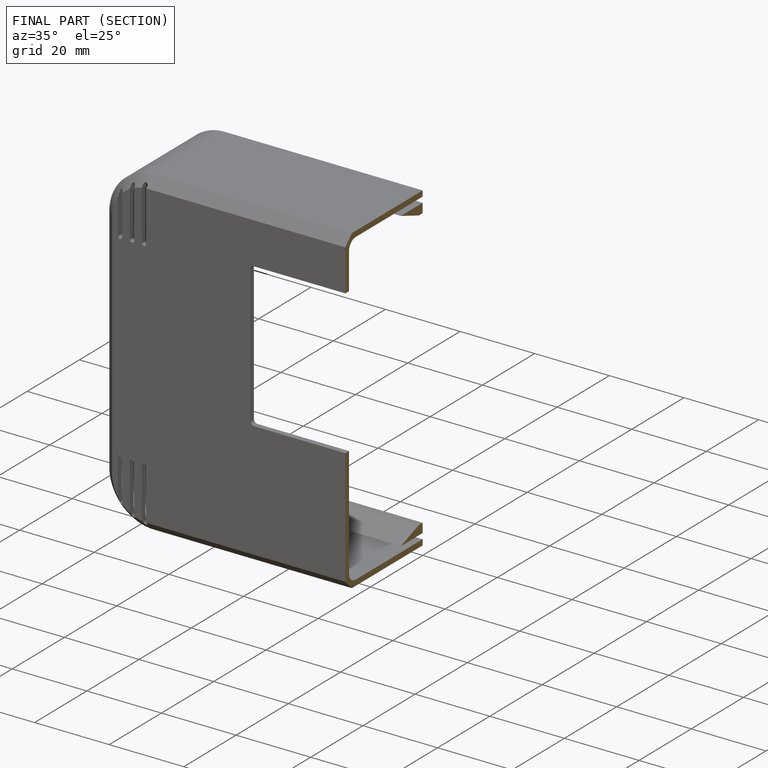
[diagram: finished part — half-section view (interior)]
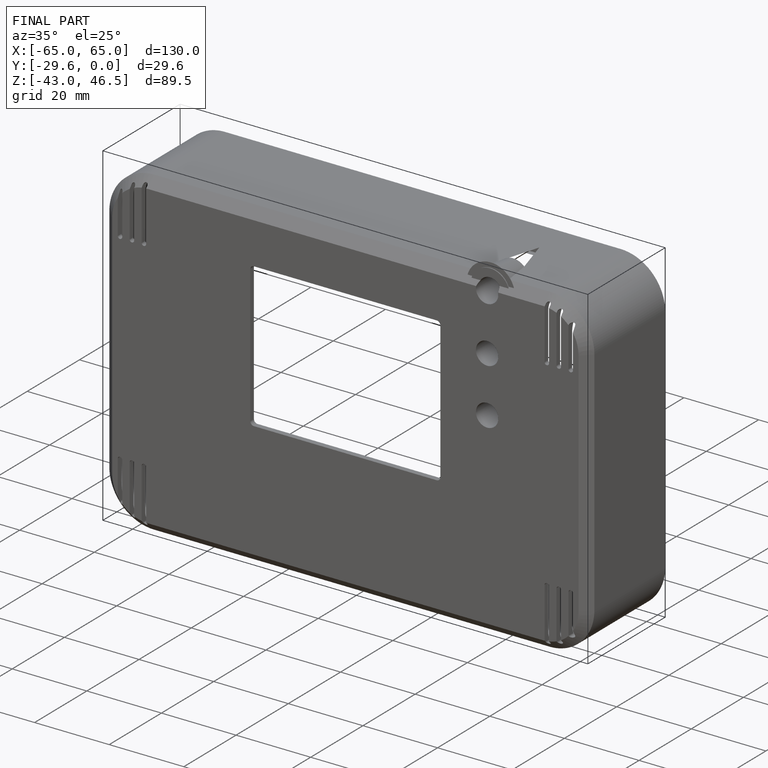
[diagram: finished part — iso view with bounding-box wireframe]
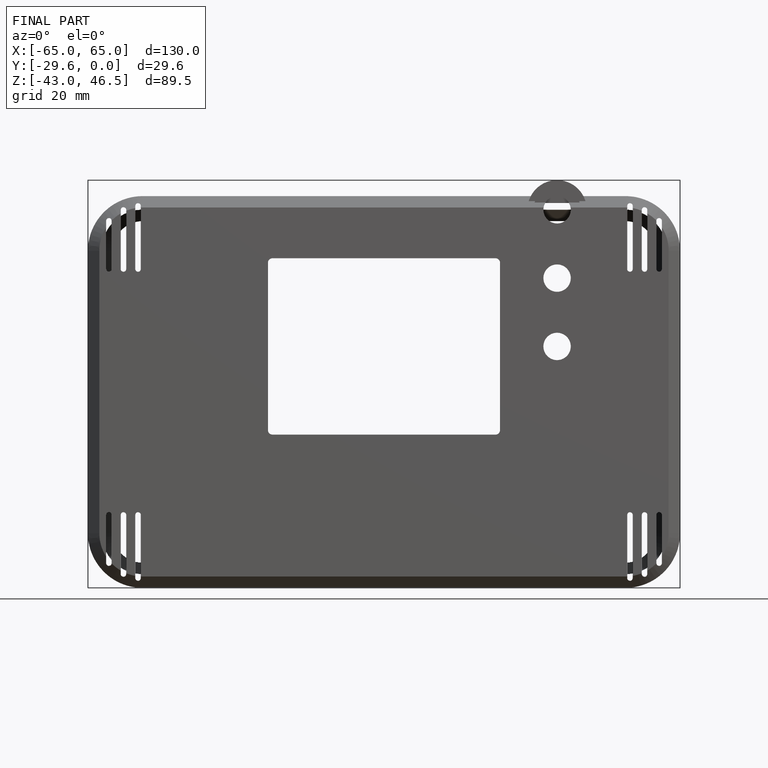
[diagram: finished part — front view with bounding-box wireframe]
